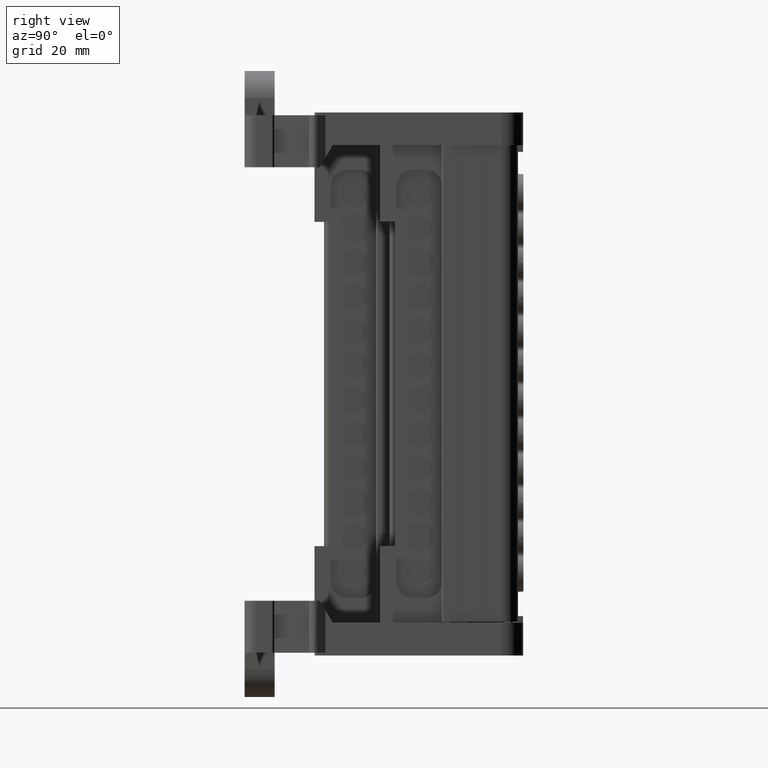
[diagram: clean part render]
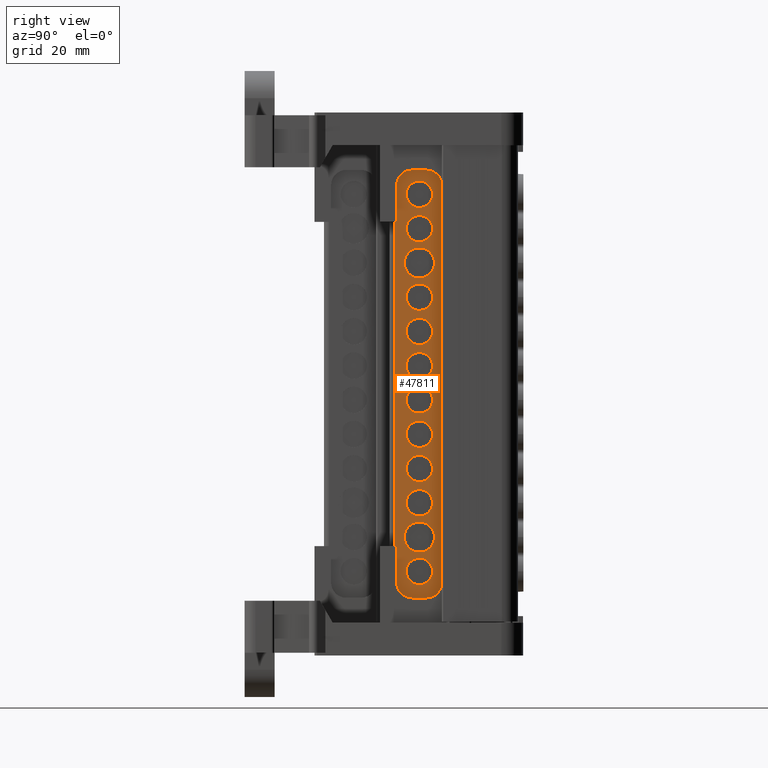
[diagram: same view with one face highlighted and labeled with its STEP entity id]
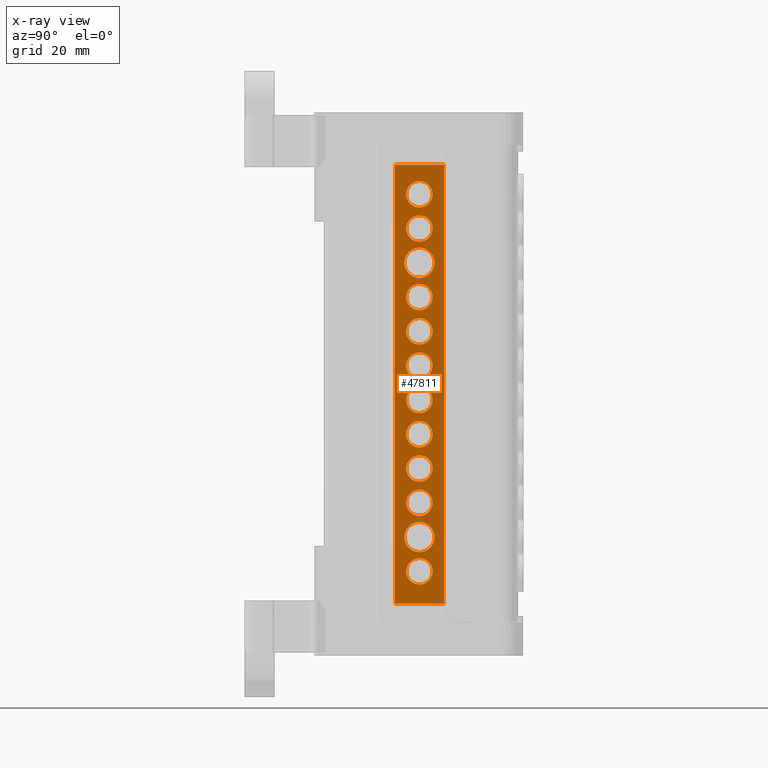
[diagram: x-ray of the same camera — body ghosted, the highlighted face saturated]
A machine part, right view. The second image highlights one B-rep face of the part: STEP entity #47811.
The next image is the same camera in x-ray: the body ghosted, the highlighted face saturated — about 0% of this face is hidden behind the body in this view.
In plain terms, the highlighted planar face has unit normal (1, -0, -0).
Its self-contained STEP definition (entity closure, byte-faithful):
#2196 = CARTESIAN_POINT ( 'NONE',  ( -31.31639942213237800, 28.14872864396558300, 35.76981950541748000 ) ) ;
#2210 = CARTESIAN_POINT ( 'NONE',  ( -31.31639942213237400, 28.14872864396528800, -1.730180494582551200 ) ) ;
#2214 = CARTESIAN_POINT ( 'NONE',  ( -31.31639942213237800, 28.14872864396523500, -7.980180494582527700 ) ) ;
#2215 = CARTESIAN_POINT ( 'NONE',  ( -31.31639942213158900, 32.94872864396528900, -1.730180494582572300 ) ) ;
#2217 = CARTESIAN_POINT ( 'NONE',  ( -31.31639942213158900, 32.94872864396538100, 10.76981950541741600 ) ) ;
#2219 = CARTESIAN_POINT ( 'NONE',  ( -31.31639942213159600, 32.94872864396540300, -14.23018049458254100 ) ) ;
#2226 = CARTESIAN_POINT ( 'NONE',  ( -31.31639942213158900, 32.94872864396543800, 17.01981950541742300 ) ) ;
#2233 = CARTESIAN_POINT ( 'NONE',  ( -31.31639942213237800, 28.14872864396533800, 4.519819505417433300 ) ) ;
#2236 = CARTESIAN_POINT ( 'NONE',  ( -31.31639942213153900, 33.29872864396534700, -20.48018049458254100 ) ) ;
#2241 = CARTESIAN_POINT ( 'NONE',  ( -31.31639942213158900, 32.94872864396523900, -7.980180494582551600 ) ) ;
#2243 = CARTESIAN_POINT ( 'NONE',  ( -31.31639942213237800, 28.14872864396507900, -26.73018049458251600 ) ) ;
#2245 = CARTESIAN_POINT ( 'NONE',  ( -31.31639942213244200, 27.79872864396534400, -20.48018049458254100 ) ) ;
#2247 = CARTESIAN_POINT ( 'NONE',  ( -31.31639942213237800, 28.14872864396538400, 10.76981950541744100 ) ) ;
#2248 = CARTESIAN_POINT ( 'NONE',  ( -31.31639942213238500, 28.14872864396540600, -14.23018049458254100 ) ) ;
#2257 = CARTESIAN_POINT ( 'NONE',  ( -31.31639942213158900, 32.94872864396507600, -26.73018049458254100 ) ) ;
#2276 = CARTESIAN_POINT ( 'NONE',  ( -31.31639942213158900, 32.94872864396533900, 4.519819505417411100 ) ) ;
#2289 = CARTESIAN_POINT ( 'NONE',  ( -31.31639942213158900, 32.94872864396564400, 42.01981950541741600 ) ) ;
#2308 = CARTESIAN_POINT ( 'NONE',  ( -31.31639942213237800, 28.14872864396549400, 23.26981950541745500 ) ) ;
#2324 = CARTESIAN_POINT ( 'NONE',  ( -31.31639942213158900, 32.94872864396548800, 23.26981950541742700 ) ) ;
#2327 = CARTESIAN_POINT ( 'NONE',  ( -31.31639942213158900, 32.94872864396557300, 35.76981950541748000 ) ) ;
#2333 = CARTESIAN_POINT ( 'NONE',  ( -31.31639942213237800, 28.14872864396544100, 17.01981950541744100 ) ) ;
#2353 = CARTESIAN_POINT ( 'NONE',  ( -31.31639942213236700, 28.14872864396563700, 42.01981950541744500 ) ) ;
#2366 = CARTESIAN_POINT ( 'NONE',  ( -31.31639942213243400, 27.79872864396553900, 29.51981950541742700 ) ) ;
#2379 = CARTESIAN_POINT ( 'NONE',  ( -31.31639942213153200, 33.29872864396553900, 29.51981950541742700 ) ) ;
#3229 = CARTESIAN_POINT ( 'NONE',  ( -31.31639942213183800, 31.50859989449469000, -28.92998913095131300 ) ) ;
#3672 = CARTESIAN_POINT ( 'NONE',  ( -31.31639942213183000, 31.47059762070207600, -28.94615754568068800 ) ) ;
#3712 = CARTESIAN_POINT ( 'NONE',  ( -31.31639942213183800, 31.44984691222700600, -28.95465940452384900 ) ) ;
#3992 = CARTESIAN_POINT ( 'NONE',  ( -31.31639942213167800, 32.47949910977980200, -28.19332252716890300 ) ) ;
#3993 = CARTESIAN_POINT ( 'NONE',  ( -31.31639942213173500, 32.12892782332912800, -28.54419389056106100 ) ) ;
#3998 = CARTESIAN_POINT ( 'NONE',  ( -31.31639942213160300, 32.86605903246867700, -27.36319263865615500 ) ) ;
#3999 = CARTESIAN_POINT ( 'NONE',  ( -31.31639942213176300, 31.93958138022902900, -28.69871618737183600 ) ) ;
#4000 = CARTESIAN_POINT ( 'NONE',  ( -31.31639942213161700, 32.79401196603733800, -27.57813633414855700 ) ) ;
#4014 = CARTESIAN_POINT ( 'NONE',  ( -31.31639942213160300, 32.92743731395749100, -27.10794338790226700 ) ) ;
#4015 = CARTESIAN_POINT ( 'NONE',  ( -31.31639942213161700, 32.78782150774382100, -27.59438635575431000 ) ) ;
#4019 = CARTESIAN_POINT ( 'NONE',  ( -31.31639942213158900, 32.94872864396507600, -26.73018049458254100 ) ) ;
#4020 = CARTESIAN_POINT ( 'NONE',  ( -31.31639942213162400, 32.80714818204734900, -27.54253538616209700 ) ) ;
#4051 = CARTESIAN_POINT ( 'NONE',  ( -31.31639942213159600, 32.94859846092146000, -26.88294305484034300 ) ) ;
#4052 = CARTESIAN_POINT ( 'NONE',  ( -31.31639942213161700, 32.82619732254991600, -27.48900447957850800 ) ) ;
#4053 = CARTESIAN_POINT ( 'NONE',  ( -31.31639942213164200, 32.65860550685166400, -27.92115086596007600 ) ) ;
#4364 = CARTESIAN_POINT ( 'NONE',  ( -31.31639942213180200, 31.69407079683148600, -28.84239377676853900 ) ) ;
#4494 = CARTESIAN_POINT ( 'NONE',  ( -31.31639942213181600, 31.56516390518750000, -28.90508296557958800 ) ) ;
#6429 = CIRCLE ( 'NONE', #6434, 2.399999999999999500 ) ;
#6434 = AXIS2_PLACEMENT_3D ( 'NONE', #27662, #27724, #27639 ) ;
#6439 = CIRCLE ( 'NONE', #6451, 2.750000000000002700 ) ;
#6451 = AXIS2_PLACEMENT_3D ( 'NONE', #21635, #21525, #21626 ) ;
#6478 = AXIS2_PLACEMENT_3D ( 'NONE', #27935, #27850, #27943 ) ;
#6522 = AXIS2_PLACEMENT_3D ( 'NONE', #27775, #27769, #27791 ) ;
#6530 = CIRCLE ( 'NONE', #6478, 2.399999999999992400 ) ;
#6536 = CIRCLE ( 'NONE', #6522, 2.750000000000002700 ) ;
#6596 = VECTOR ( 'NONE', #33499, 1000.000000000000000 ) ;
#8695 = CARTESIAN_POINT ( 'NONE',  ( -31.31639942213206900, 30.17182937614460400, -29.10923067991484800 ) ) ;
#8707 = CARTESIAN_POINT ( 'NONE',  ( -31.31639942213194800, 30.85326676390978300, -29.13005055742415200 ) ) ;
#8709 = CARTESIAN_POINT ( 'NONE',  ( -31.31639942213237400, 28.20515881928823300, -27.33088116005317000 ) ) ;
#8712 = CARTESIAN_POINT ( 'NONE',  ( -31.31639942213234600, 28.34892002657073500, -27.69005176407197100 ) ) ;
#8718 = CARTESIAN_POINT ( 'NONE',  ( -31.31639942213210000, 29.79028249512501600, -29.00779858612854800 ) ) ;
#8726 = CARTESIAN_POINT ( 'NONE',  ( -31.31639942213201200, 30.39645958399248800, -29.13024546316173200 ) ) ;
#8728 = CARTESIAN_POINT ( 'NONE',  ( -31.31639942213236000, 28.37382620448486000, -27.74661578729749300 ) ) ;
#8730 = CARTESIAN_POINT ( 'NONE',  ( -31.31639942213209300, 29.91636421901590400, -29.04776701959104600 ) ) ;
#8733 = CARTESIAN_POINT ( 'NONE',  ( -31.31639942213237800, 28.14872864396507900, -26.73018049458251600 ) ) ;
#8738 = CARTESIAN_POINT ( 'NONE',  ( -31.31639942213230300, 28.73471528915141700, -28.31037971507958400 ) ) ;
#8741 = CARTESIAN_POINT ( 'NONE',  ( -31.31639942213222800, 29.08558652904904600, -28.66095087813123900 ) ) ;
#8757 = CARTESIAN_POINT ( 'NONE',  ( -31.31639942213237800, 28.14898946013818200, -27.03640539240369700 ) ) ;
#8759 = CARTESIAN_POINT ( 'NONE',  ( -31.31639942213213600, 29.70089232399935900, -28.97551107993841100 ) ) ;
#8784 = CARTESIAN_POINT ( 'NONE',  ( -31.31639942213236700, 28.33275160283653800, -27.65204948128153700 ) ) ;
#8803 = CARTESIAN_POINT ( 'NONE',  ( -31.31639942213219300, 29.35775826721445400, -28.84005735209385100 ) ) ;
#8810 = CARTESIAN_POINT ( 'NONE',  ( -31.31639942213212200, 29.68452278312906100, -28.96927335869719800 ) ) ;
#8820 = CARTESIAN_POINT ( 'NONE',  ( -31.31639942213232400, 28.58019302321424600, -28.12103330282927200 ) ) ;
#8825 = CARTESIAN_POINT ( 'NONE',  ( -31.31639942213212900, 29.73660122517323500, -28.98868998536591200 ) ) ;
#8834 = CARTESIAN_POINT ( 'NONE',  ( -31.31639942213190900, 31.14910050189574200, -29.07388061886945300 ) ) ;
#8842 = CARTESIAN_POINT ( 'NONE',  ( -31.31639942213232400, 28.43651541580792100, -27.87552270143605400 ) ) ;
#8845 = CARTESIAN_POINT ( 'NONE',  ( -31.31639942213236700, 28.32424159029815400, -27.63127821237330700 ) ) ;
#9026 = CARTESIAN_POINT ( 'NONE',  ( -31.31639942213158900, 32.94872864396564400, 42.01981950541741600 ) ) ;
#9031 = CARTESIAN_POINT ( 'NONE',  ( -31.31639942213158900, 32.94872864396523900, -7.980180494582551600 ) ) ;
#9033 = CARTESIAN_POINT ( 'NONE',  ( -31.31639942213158900, 32.94859846092202800, 41.86705694515590200 ) ) ;
#9035 = CARTESIAN_POINT ( 'NONE',  ( -31.31639942213159600, 32.94859846092164400, -8.132943054845522800 ) ) ;
#9038 = CARTESIAN_POINT ( 'NONE',  ( -31.31639942213158200, 32.92743731395802300, 41.64205661209118100 ) ) ;
#9046 = CARTESIAN_POINT ( 'NONE',  ( -31.31639942213160300, 32.86605903246921700, 41.38680736133890300 ) ) ;
#9064 = CARTESIAN_POINT ( 'NONE',  ( -31.31639942213162400, 32.80714818204786800, 41.20746461383608800 ) ) ;
#9073 = CARTESIAN_POINT ( 'NONE',  ( -31.31639942213161000, 32.82619732255043500, 41.26099552041854700 ) ) ;
#9172 = CARTESIAN_POINT ( 'NONE',  ( -31.31639942213180200, 31.69407079683933400, -10.09239377676697900 ) ) ;
#9175 = CARTESIAN_POINT ( 'NONE',  ( -31.31639942213212200, 29.70089232400046700, -10.22551107993843900 ) ) ;
#9177 = CARTESIAN_POINT ( 'NONE',  ( -31.31639942213183000, 31.50859989449942900, 39.82001086905160700 ) ) ;
#9180 = CARTESIAN_POINT ( 'NONE',  ( -31.31639942213184500, 31.44984691222666500, 39.79534059547607000 ) ) ;
#9183 = CARTESIAN_POINT ( 'NONE',  ( -31.31639942213212900, 29.68452278312907200, -10.21927335869695800 ) ) ;
#9186 = CARTESIAN_POINT ( 'NONE',  ( -31.31639942213172700, 32.12892782333514700, -9.794193890559723700 ) ) ;
#9188 = CARTESIAN_POINT ( 'NONE',  ( -31.31639942213217900, 29.35775826722381200, -10.09005735210070400 ) ) ;
#9191 = CARTESIAN_POINT ( 'NONE',  ( -31.31639942213232400, 28.58019302321574200, -9.371033302832634200 ) ) ;
#9193 = CARTESIAN_POINT ( 'NONE',  ( -31.31639942213208600, 29.79028249511793200, 39.74220141387189600 ) ) ;
#9196 = CARTESIAN_POINT ( 'NONE',  ( -31.31639942213161000, 32.80714818204760500, -8.792535386164248100 ) ) ;
#9197 = CARTESIAN_POINT ( 'NONE',  ( -31.31639942213205400, 30.17182937614921200, -10.35923067991396200 ) ) ;
#9202 = CARTESIAN_POINT ( 'NONE',  ( -31.31639942213231700, 28.43651541580909000, -9.125522701438605100 ) ) ;
#9204 = CARTESIAN_POINT ( 'NONE',  ( -31.31639942213217900, 29.35775826721424400, 39.90994264791360300 ) ) ;
#9206 = CARTESIAN_POINT ( 'NONE',  ( -31.31639942213236700, 28.20515881928878000, 41.41911883995712900 ) ) ;
#9209 = CARTESIAN_POINT ( 'NONE',  ( -31.31639942213177700, 31.93958138023920400, -9.948716187369800700 ) ) ;
#9212 = CARTESIAN_POINT ( 'NONE',  ( -31.31639942213210800, 29.79028249512735000, -10.25779858612826900 ) ) ;
#9215 = CARTESIAN_POINT ( 'NONE',  ( -31.31639942213190200, 31.14910050188832700, -10.32388061887040100 ) ) ;
#9217 = CARTESIAN_POINT ( 'NONE',  ( -31.31639942213223200, 29.08558652904811800, -9.910950878127918500 ) ) ;
#9220 = CARTESIAN_POINT ( 'NONE',  ( -31.31639942213178800, 31.69407079684434700, 39.90760622324008700 ) ) ;
#9223 = CARTESIAN_POINT ( 'NONE',  ( -31.31639942213212900, 29.70089232399730900, 39.77448892006177800 ) ) ;
#9226 = CARTESIAN_POINT ( 'NONE',  ( -31.31639942213235300, 28.32424159029866600, 41.11872178762610700 ) ) ;
#9228 = CARTESIAN_POINT ( 'NONE',  ( -31.31639942213199700, 30.39645958398316600, 39.61975453683876200 ) ) ;
#9231 = CARTESIAN_POINT ( 'NONE',  ( -31.31639942213188700, 31.14910050190713200, 39.67611938112946700 ) ) ;
#9233 = CARTESIAN_POINT ( 'NONE',  ( -31.31639942213206100, 30.17182937612806300, 39.64076932008605800 ) ) ;
#9236 = CARTESIAN_POINT ( 'NONE',  ( -31.31639942213234600, 28.33275160283670900, 41.09795051871808600 ) ) ;
#9238 = CARTESIAN_POINT ( 'NONE',  ( -31.31639942213194100, 30.85326676390595700, -10.38005055742517300 ) ) ;
#9241 = CARTESIAN_POINT ( 'NONE',  ( -31.31639942213179500, 31.56516390519515600, 39.84491703442539300 ) ) ;
#9244 = CARTESIAN_POINT ( 'NONE',  ( -31.31639942213229600, 28.73471528915245100, -9.560379715081619900 ) ) ;
#9246 = CARTESIAN_POINT ( 'NONE',  ( -31.31639942213167800, 32.47949910976125000, 40.55667747281756200 ) ) ;
#9247 = CARTESIAN_POINT ( 'NONE',  ( -31.31639942213161700, 32.78782150774419800, -8.844386355754496200 ) ) ;
#9249 = CARTESIAN_POINT ( 'NONE',  ( -31.31639942213172700, 32.12892782333905500, 40.20580610944547600 ) ) ;
#9252 = CARTESIAN_POINT ( 'NONE',  ( -31.31639942213232400, 28.43651541580653900, 40.87447729856142300 ) ) ;
#9255 = CARTESIAN_POINT ( 'NONE',  ( -31.31639942213161700, 32.78782150774444700, 41.15561364424529200 ) ) ;
#9257 = CARTESIAN_POINT ( 'NONE',  ( -31.31639942213234600, 28.34892002657057800, 41.05994823592718700 ) ) ;
#9260 = CARTESIAN_POINT ( 'NONE',  ( -31.31639942213177000, 31.93958138024609300, 40.05128381263971000 ) ) ;
#9263 = CARTESIAN_POINT ( 'NONE',  ( -31.31639942213211500, 29.73660122516907800, 39.76131001463439000 ) ) ;
#9266 = CARTESIAN_POINT ( 'NONE',  ( -31.31639942213235300, 28.37382620448427400, 41.00338421270106400 ) ) ;
#9268 = CARTESIAN_POINT ( 'NONE',  ( -31.31639942213231000, 28.58019302321218500, 40.62896669716734300 ) ) ;
#9270 = CARTESIAN_POINT ( 'NONE',  ( -31.31639942213165600, 32.65860550685066200, 40.82884913404397800 ) ) ;
#9273 = CARTESIAN_POINT ( 'NONE',  ( -31.31639942213212900, 29.68452278312937100, 39.78072664130240100 ) ) ;
#9276 = CARTESIAN_POINT ( 'NONE',  ( -31.31639942213160300, 32.79401196603787100, 41.17186366585041700 ) ) ;
#9280 = CARTESIAN_POINT ( 'NONE',  ( -31.31639942213208600, 29.91636421900356500, 39.70223298040964700 ) ) ;
#9283 = CARTESIAN_POINT ( 'NONE',  ( -31.31639942213159600, 32.92743731395767500, -8.357943387911287700 ) ) ;
#9286 = CARTESIAN_POINT ( 'NONE',  ( -31.31639942213159600, 32.86605903246890400, -8.613192638662804200 ) ) ;
#9287 = CARTESIAN_POINT ( 'NONE',  ( -31.31639942213222100, 29.08558652905228600, 40.08904912187275500 ) ) ;
#9290 = CARTESIAN_POINT ( 'NONE',  ( -31.31639942213237800, 28.14898946013874700, 41.71359460760657400 ) ) ;
#9293 = CARTESIAN_POINT ( 'NONE',  ( -31.31639942213162400, 32.82619732255015100, -8.739004479582254300 ) ) ;
#9296 = CARTESIAN_POINT ( 'NONE',  ( -31.31639942213183800, 31.47059762070475500, 39.80384245432078700 ) ) ;
#9301 = CARTESIAN_POINT ( 'NONE',  ( -31.31639942213162400, 32.79401196603760800, -8.828136334149554900 ) ) ;
#9304 = CARTESIAN_POINT ( 'NONE',  ( -31.31639942213193700, 30.85326676392931600, 39.61994944257480700 ) ) ;
#9307 = CARTESIAN_POINT ( 'NONE',  ( -31.31639942213163900, 32.65860550685037800, -9.171150865952411000 ) ) ;
#9309 = CARTESIAN_POINT ( 'NONE',  ( -31.31639942213228900, 28.73471528915041500, 40.43962028491851900 ) ) ;
#9312 = CARTESIAN_POINT ( 'NONE',  ( -31.31639942213184500, 31.50859989449795900, -10.17998913095062000 ) ) ;
#9315 = CARTESIAN_POINT ( 'NONE',  ( -31.31639942213167800, 32.47949910976935700, -9.443322527170513700 ) ) ;
#9318 = CARTESIAN_POINT ( 'NONE',  ( -31.31639942213183800, 31.44984691222828800, -10.20465940452355000 ) ) ;
#9320 = CARTESIAN_POINT ( 'NONE',  ( -31.31639942213236700, 28.14872864396563700, 42.01981950541744500 ) ) ;
#9323 = CARTESIAN_POINT ( 'NONE',  ( -31.31639942213201900, 30.39645958399542300, -10.38024546316121100 ) ) ;
#9326 = CARTESIAN_POINT ( 'NONE',  ( -31.31639942213183800, 31.47059762070417200, -10.19615754568022600 ) ) ;
#9329 = CARTESIAN_POINT ( 'NONE',  ( -31.31639942213208600, 29.91636421901948900, -10.29776701959045400 ) ) ;
#9331 = CARTESIAN_POINT ( 'NONE',  ( -31.31639942213182300, 31.56516390519242800, -10.15508296557856800 ) ) ;
#9334 = CARTESIAN_POINT ( 'NONE',  ( -31.31639942213212900, 29.73660122517486600, -10.23868998536581500 ) ) ;
#9352 = CARTESIAN_POINT ( 'NONE',  ( -31.31639942213237800, 28.14872864396523500, -7.980180494582527700 ) ) ;
#9369 = CARTESIAN_POINT ( 'NONE',  ( -31.31639942213238500, 28.14898946013834900, -8.286405392403651100 ) ) ;
#9379 = CARTESIAN_POINT ( 'NONE',  ( -31.31639942213236000, 28.33275160283693900, -8.902049481282139400 ) ) ;
#9382 = CARTESIAN_POINT ( 'NONE',  ( -31.31639942213235300, 28.34892002657127800, -8.940051764072974200 ) ) ;
#9440 = CARTESIAN_POINT ( 'NONE',  ( -31.31639942213236700, 28.37382620448564900, -8.996615787299052900 ) ) ;
#9456 = CARTESIAN_POINT ( 'NONE',  ( -31.31639942213236000, 28.32424159029838200, -8.881278212373489500 ) ) ;
#9479 = CARTESIAN_POINT ( 'NONE',  ( -31.31639942213237400, 28.20515881928841800, -8.580881160053182900 ) ) ;
#9531 = DIRECTION ( 'NONE',  ( 1.640102195468979700E-013, 1.000000000000000000, 0.0000000000000000000 ) ) ;
#9650 = CARTESIAN_POINT ( 'NONE',  ( -31.31639942213198300, 30.54872864396553900, 29.51981950541742700 ) ) ;
#9652 = DIRECTION ( 'NONE',  ( -1.000000000000000000, 1.648274865130208900E-013, 1.189952329614814900E-016 ) ) ;
#9665 = CARTESIAN_POINT ( 'NONE',  ( -31.31639942213158900, 32.94872864396528900, -1.730180494582572300 ) ) ;
#9670 = CARTESIAN_POINT ( 'NONE',  ( -31.31639942213180900, 31.56516390519367100, -3.905082965578103000 ) ) ;
#9672 = CARTESIAN_POINT ( 'NONE',  ( -31.31639942213185900, 31.50859989449859800, -3.929989130950398900 ) ) ;
#9691 = CARTESIAN_POINT ( 'NONE',  ( -31.31639942213158900, 32.94872864396548800, 23.26981950541742700 ) ) ;
#9707 = CARTESIAN_POINT ( 'NONE',  ( -31.31639942213159600, 32.94859846092187900, 23.11705694515592700 ) ) ;
#9709 = CARTESIAN_POINT ( 'NONE',  ( -31.31639942213160300, 32.82619732255011500, -2.489004479586584700 ) ) ;
#9714 = CARTESIAN_POINT ( 'NONE',  ( -31.31639942213161700, 32.80714818204757000, -2.542535386166934400 ) ) ;
#9726 = CARTESIAN_POINT ( 'NONE',  ( -31.31639942213159600, 32.79401196603757300, -2.578136334151072800 ) ) ;
#9729 = CARTESIAN_POINT ( 'NONE',  ( -31.31639942213161000, 32.78782150774454600, -2.594386355754478800 ) ) ;
#9743 = CARTESIAN_POINT ( 'NONE',  ( -31.31639942213168500, 32.47949910976526400, -3.193322527172454400 ) ) ;
#9748 = CARTESIAN_POINT ( 'NONE',  ( -31.31639942213172700, 32.12892782333692300, -3.544193890559125900 ) ) ;
#9759 = CARTESIAN_POINT ( 'NONE',  ( -31.31639942213177700, 31.93958138024245100, -3.698716187368557700 ) ) ;
#9761 = CARTESIAN_POINT ( 'NONE',  ( -31.31639942213180200, 31.69407079684168200, -3.842393776766058100 ) ) ;
#9774 = CARTESIAN_POINT ( 'NONE',  ( -31.31639942213159600, 32.94859846092163700, -1.882943054850978500 ) ) ;
#9775 = CARTESIAN_POINT ( 'NONE',  ( -31.31639942213158900, 32.92743731395764700, -2.107943387920840000 ) ) ;
#9805 = CARTESIAN_POINT ( 'NONE',  ( -31.31639942213159600, 32.86605903246884700, -2.363192638670051700 ) ) ;
#9818 = CARTESIAN_POINT ( 'NONE',  ( -31.31639942213164900, 32.65860550684431000, -2.921150865956339000 ) ) ;
#9821 = CARTESIAN_POINT ( 'NONE',  ( -31.31639942213237800, 28.14898946013840200, -2.036405392402717700 ) ) ;
#9824 = CARTESIAN_POINT ( 'NONE',  ( -31.31639942213213600, 29.70089232399938300, -3.975511079938416300 ) ) ;
#9825 = CARTESIAN_POINT ( 'NONE',  ( -31.31639942213183000, 31.50859989449597600, 21.07001086904881900 ) ) ;
#9828 = CARTESIAN_POINT ( 'NONE',  ( -31.31639942213158900, 32.86605903246908900, 22.63680736133896000 ) ) ;
#9830 = CARTESIAN_POINT ( 'NONE',  ( -31.31639942213184500, 31.44984691222726900, 21.04534059547603100 ) ) ;
#9833 = CARTESIAN_POINT ( 'NONE',  ( -31.31639942213234600, 28.37382620448515900, -2.746615787298075000 ) ) ;
#9834 = CARTESIAN_POINT ( 'NONE',  ( -31.31639942213237800, 28.14872864396549400, 23.26981950541745500 ) ) ;
#9837 = CARTESIAN_POINT ( 'NONE',  ( -31.31639942213232400, 28.43651541580822300, -2.875522701436948700 ) ) ;
#9840 = CARTESIAN_POINT ( 'NONE',  ( -31.31639942213208600, 29.91636421901102200, 20.95223298040827200 ) ) ;
#9843 = CARTESIAN_POINT ( 'NONE',  ( -31.31639942213162400, 32.80714818204776200, 22.45746461383619400 ) ) ;
#9845 = CARTESIAN_POINT ( 'NONE',  ( -31.31639942213201900, 30.39645958399103500, -4.130245463161231500 ) ) ;
#9848 = CARTESIAN_POINT ( 'NONE',  ( -31.31639942213212200, 29.68452278312949500, -3.969273358697349400 ) ) ;
#9851 = CARTESIAN_POINT ( 'NONE',  ( -31.31639942213229600, 28.73471528915175100, -3.310379715080329400 ) ) ;
#9854 = CARTESIAN_POINT ( 'NONE',  ( -31.31639942213213600, 29.68452278312945200, 21.03072664130252200 ) ) ;
#9856 = CARTESIAN_POINT ( 'NONE',  ( -31.31639942213185200, 31.44984691222799000, -3.954659404523711300 ) ) ;
#9861 = CARTESIAN_POINT ( 'NONE',  ( -31.31639942213235300, 28.32424159029857700, 22.36872178762635600 ) ) ;
#9864 = CARTESIAN_POINT ( 'NONE',  ( -31.31639942213236700, 28.20515881928846700, -2.330881160052236600 ) ) ;
#9868 = CARTESIAN_POINT ( 'NONE',  ( -31.31639942213180200, 31.69407079683457700, 21.15760622323194800 ) ) ;
#9871 = CARTESIAN_POINT ( 'NONE',  ( -31.31639942213205400, 30.17182937614169800, -4.109230679913975900 ) ) ;
#9874 = CARTESIAN_POINT ( 'NONE',  ( -31.31639942213211500, 29.79028249512402800, -4.007798586128257200 ) ) ;
#9875 = CARTESIAN_POINT ( 'NONE',  ( -31.31639942213234600, 28.34892002657100800, -2.690051764072383600 ) ) ;
#9878 = CARTESIAN_POINT ( 'NONE',  ( -31.31639942213161000, 32.82619732255030700, 22.51099552041865300 ) ) ;
#9881 = CARTESIAN_POINT ( 'NONE',  ( -31.31639942213189400, 31.14910050189678600, 20.92611938113158100 ) ) ;
#9884 = CARTESIAN_POINT ( 'NONE',  ( -31.31639942213200500, 30.39645958398881800, 20.86975453683775300 ) ) ;
#9886 = CARTESIAN_POINT ( 'NONE',  ( -31.31639942213206900, 30.17182937613796100, 20.89076932008426000 ) ) ;
#9889 = CARTESIAN_POINT ( 'NONE',  ( -31.31639942213185200, 31.47059762070437800, -3.946157545680180500 ) ) ;
#9892 = CARTESIAN_POINT ( 'NONE',  ( -31.31639942213180200, 31.56516390518942900, 21.09491703442068200 ) ) ;
#9895 = CARTESIAN_POINT ( 'NONE',  ( -31.31639942213231700, 28.58019302321455500, -3.121033302830410700 ) ) ;
#9897 = CARTESIAN_POINT ( 'NONE',  ( -31.31639942213237400, 28.14872864396528800, -1.730180494582551200 ) ) ;
#9900 = CARTESIAN_POINT ( 'NONE',  ( -31.31639942213167100, 32.47949910977595800, 21.80667747283020200 ) ) ;
#9903 = CARTESIAN_POINT ( 'NONE',  ( -31.31639942213172700, 32.12892782333158700, 21.45580610943930800 ) ) ;
#9906 = CARTESIAN_POINT ( 'NONE',  ( -31.31639942213161700, 32.78782150774442500, 22.40561364424565500 ) ) ;
#9908 = CARTESIAN_POINT ( 'NONE',  ( -31.31639942213212200, 29.73660122517176400, 21.01131001463385700 ) ) ;
#9911 = CARTESIAN_POINT ( 'NONE',  ( -31.31639942213175600, 31.93958138023307600, 21.30128381262883500 ) ) ;
#9914 = CARTESIAN_POINT ( 'NONE',  ( -31.31639942213194100, 30.85326676391412400, -4.130050557425196400 ) ) ;
#9917 = CARTESIAN_POINT ( 'NONE',  ( -31.31639942213210000, 29.79028249512233000, 20.99220141387107600 ) ) ;
#9918 = CARTESIAN_POINT ( 'NONE',  ( -31.31639942213228200, 28.73471528915166900, 21.68962028491828100 ) ) ;
#9921 = CARTESIAN_POINT ( 'NONE',  ( -31.31639942213163200, 32.65860550684901400, 22.07884913404025800 ) ) ;
#9924 = CARTESIAN_POINT ( 'NONE',  ( -31.31639942213217900, 29.35775826721587800, -3.840057352093913900 ) ) ;
#9926 = CARTESIAN_POINT ( 'NONE',  ( -31.31639942213161700, 32.79401196603774300, 22.42186366585054100 ) ) ;
#9928 = CARTESIAN_POINT ( 'NONE',  ( -31.31639942213212200, 29.70089232399876900, 21.02448892006146500 ) ) ;
#9931 = CARTESIAN_POINT ( 'NONE',  ( -31.31639942213231700, 28.58019302321437400, 21.87896669716701200 ) ) ;
#9934 = CARTESIAN_POINT ( 'NONE',  ( -31.31639942213231700, 28.43651541580814200, 22.12447729856115300 ) ) ;
#9937 = CARTESIAN_POINT ( 'NONE',  ( -31.31639942213190200, 31.14910050188832700, -4.073880618870472100 ) ) ;
#9939 = CARTESIAN_POINT ( 'NONE',  ( -31.31639942213212200, 29.73660122517283700, -3.988689985365792400 ) ) ;
#9945 = CARTESIAN_POINT ( 'NONE',  ( -31.31639942213222800, 29.08558652904946500, -3.660950878130379200 ) ) ;
#9947 = CARTESIAN_POINT ( 'NONE',  ( -31.31639942213233900, 28.33275160283681500, -2.652049481281820900 ) ) ;
#9950 = CARTESIAN_POINT ( 'NONE',  ( -31.31639942213210000, 29.91636421901386500, -4.047767019590452300 ) ) ;
#9953 = CARTESIAN_POINT ( 'NONE',  ( -31.31639942213236000, 28.32424159029843800, -2.631278212373533900 ) ) ;
#9956 = CARTESIAN_POINT ( 'NONE',  ( -31.31639942213159600, 32.92743731395788800, 22.89205661209122400 ) ) ;
#9958 = CARTESIAN_POINT ( 'NONE',  ( -31.31639942213183000, 31.47059762070290700, 21.05384245431935100 ) ) ;
#9961 = CARTESIAN_POINT ( 'NONE',  ( -31.31639942213194100, 30.85326676391811800, 20.86994944257689600 ) ) ;
#9963 = CARTESIAN_POINT ( 'NONE',  ( -31.31639942213218600, 29.35775826721478100, 21.15994264791073600 ) ) ;
#9965 = CARTESIAN_POINT ( 'NONE',  ( -31.31639942213222800, 29.08558652904978100, 21.33904912187291800 ) ) ;
#9966 = CARTESIAN_POINT ( 'NONE',  ( -31.31639942213234600, 28.37382620448516900, 22.25338421270084100 ) ) ;
#9969 = CARTESIAN_POINT ( 'NONE',  ( -31.31639942213233900, 28.34892002657106900, 22.30994823592701700 ) ) ;
#9972 = CARTESIAN_POINT ( 'NONE',  ( -31.31639942213233900, 28.33275160283691800, 22.34795051871791200 ) ) ;
#9974 = CARTESIAN_POINT ( 'NONE',  ( -31.31639942213236000, 28.20515881928863400, 22.66911883995136300 ) ) ;
#9976 = CARTESIAN_POINT ( 'NONE',  ( -31.31639942213237800, 28.14898946013860800, 22.96359460760085400 ) ) ;
#9998 = CARTESIAN_POINT ( 'NONE',  ( -31.31639942213159600, 32.94859846092175100, 4.367056945158082300 ) ) ;
#10066 = CARTESIAN_POINT ( 'NONE',  ( -31.31639942213158900, 32.94872864396533900, 4.519819505417411100 ) ) ;
#10137 = CARTESIAN_POINT ( 'NONE',  ( -31.31639942213167100, 32.47949910977327900, 3.056677472827653600 ) ) ;
#10138 = CARTESIAN_POINT ( 'NONE',  ( -31.31639942213223200, 29.08558652904698500, 2.589049121874416000 ) ) ;
#10140 = CARTESIAN_POINT ( 'NONE',  ( -31.31639942213231700, 28.58019302321684300, 3.128966697165370500 ) ) ;
#10142 = CARTESIAN_POINT ( 'NONE',  ( -31.31639942213180200, 31.56516390519078300, 2.344917034421944500 ) ) ;
#10144 = CARTESIAN_POINT ( 'NONE',  ( -31.31639942213178800, 31.69407079683663000, 2.407606223233979700 ) ) ;
#10145 = CARTESIAN_POINT ( 'NONE',  ( -31.31639942213183000, 31.44984691222770600, 2.295340595476347300 ) ) ;
#10149 = CARTESIAN_POINT ( 'NONE',  ( -31.31639942213210800, 29.70089232400008700, 2.274488920061581000 ) ) ;
#10151 = CARTESIAN_POINT ( 'NONE',  ( -31.31639942213234600, 28.34892002657164400, 3.559948235926496000 ) ) ;
#10152 = CARTESIAN_POINT ( 'NONE',  ( -31.31639942213210000, 29.79028249512614600, 2.242201413871740100 ) ) ;
#10154 = CARTESIAN_POINT ( 'NONE',  ( -31.31639942213160300, 32.82619732255017900, 3.760995520420370700 ) ) ;
#10158 = CARTESIAN_POINT ( 'NONE',  ( -31.31639942213204700, 30.17182937614644100, 2.140769320086034700 ) ) ;
#10159 = CARTESIAN_POINT ( 'NONE',  ( -31.31639942213208600, 29.91636421901743500, 2.202232980409554800 ) ) ;
#10161 = CARTESIAN_POINT ( 'NONE',  ( -31.31639942213176300, 31.93958138023565900, 2.551283812631486700 ) ) ;
#10163 = CARTESIAN_POINT ( 'NONE',  ( -31.31639942213161000, 32.80714818204764100, 3.707464613837246700 ) ) ;
#10165 = CARTESIAN_POINT ( 'NONE',  ( -31.31639942213183000, 31.47059762070359000, 2.303842454319871900 ) ) ;
#10166 = CARTESIAN_POINT ( 'NONE',  ( -31.31639942213233900, 28.37382620448617500, 3.503384212700074500 ) ) ;
#10179 = CARTESIAN_POINT ( 'NONE',  ( -31.31639942213161700, 32.78782150774412000, 3.655613644245548700 ) ) ;
#10180 = CARTESIAN_POINT ( 'NONE',  ( -31.31639942213159600, 32.92743731395778200, 4.142056612095025500 ) ) ;
#10184 = CARTESIAN_POINT ( 'NONE',  ( -31.31639942213194100, 30.85326676390899800, 2.119949442574806700 ) ) ;
#10186 = CARTESIAN_POINT ( 'NONE',  ( -31.31639942213161700, 32.79401196603763000, 3.671863665851126800 ) ) ;
#10188 = CARTESIAN_POINT ( 'NONE',  ( -31.31639942213190900, 31.14910050189571300, 2.176119381129551800 ) ) ;
#10190 = CARTESIAN_POINT ( 'NONE',  ( -31.31639942213217900, 29.35775826722347400, 2.409942647900814800 ) ) ;
#10192 = CARTESIAN_POINT ( 'NONE',  ( -31.31639942213201200, 30.39645958399381700, 2.119754536838776900 ) ) ;
#10199 = CARTESIAN_POINT ( 'NONE',  ( -31.31639942213228900, 28.73471528915309700, 2.939620284917260600 ) ) ;
#10200 = CARTESIAN_POINT ( 'NONE',  ( -31.31639942213160300, 32.86605903246897500, 3.886807361341855700 ) ) ;
#10206 = CARTESIAN_POINT ( 'NONE',  ( -31.31639942213172700, 32.12892782333308600, 2.705806109440934000 ) ) ;
#10207 = CARTESIAN_POINT ( 'NONE',  ( -31.31639942213231000, 28.43651541580993600, 3.374477298559886800 ) ) ;
#10209 = CARTESIAN_POINT ( 'NONE',  ( -31.31639942213212200, 29.73660122517413700, 2.261310014634205800 ) ) ;
#10211 = CARTESIAN_POINT ( 'NONE',  ( -31.31639942213236000, 28.32424159029848500, 3.618721787626544300 ) ) ;
#10217 = CARTESIAN_POINT ( 'NONE',  ( -31.31639942213212900, 29.68452278312910100, 2.280726641302973900 ) ) ;
#10220 = CARTESIAN_POINT ( 'NONE',  ( -31.31639942213237800, 28.14872864396533800, 4.519819505417433300 ) ) ;
#10222 = CARTESIAN_POINT ( 'NONE',  ( -31.31639942213237800, 28.20515881928852100, 3.919118839946233100 ) ) ;
#10224 = CARTESIAN_POINT ( 'NONE',  ( -31.31639942213164200, 32.65860550685192000, 3.328849134043307500 ) ) ;
#10226 = CARTESIAN_POINT ( 'NONE',  ( -31.31639942213233900, 28.33275160283717800, 3.597950518717584000 ) ) ;
#10233 = CARTESIAN_POINT ( 'NONE',  ( -31.31639942213182300, 31.50859989449692500, 2.320010869049651300 ) ) ;
#10236 = CARTESIAN_POINT ( 'NONE',  ( -31.31639942213238500, 28.14898946013844500, 4.213594607595752900 ) ) ;
#11490 = EDGE_CURVE ( 'NONE', #76548, #76306, #50922, .T. ) ;
#11503 = EDGE_CURVE ( 'NONE', #76267, #76302, #51353, .T. ) ;
#11515 = EDGE_CURVE ( 'NONE', #76499, #76525, #6439, .T. ) ;
#11519 = EDGE_CURVE ( 'NONE', #76281, #76347, #51588, .T. ) ;
#11523 = EDGE_CURVE ( 'NONE', #76328, #76432, #51537, .T. ) ;
#11557 = EDGE_CURVE ( 'NONE', #76364, #76512, #51729, .T. ) ;
#11567 = EDGE_CURVE ( 'NONE', #76569, #76430, #51740, .T. ) ;
#11584 = EDGE_CURVE ( 'NONE', #76274, #76259, #6429, .T. ) ;
#11591 = EDGE_CURVE ( 'NONE', #76351, #76258, #6536, .T. ) ;
#11594 = EDGE_CURVE ( 'NONE', #76358, #76524, #6530, .T. ) ;
#11595 = EDGE_CURVE ( 'NONE', #76319, #76417, #79946, .T. ) ;
#11599 = EDGE_CURVE ( 'NONE', #76356, #76288, #79948, .T. ) ;
#11735 = EDGE_CURVE ( 'NONE', #44182, #44112, #33530, .T. ) ;
#18186 = CARTESIAN_POINT ( 'NONE',  ( -31.31639942213185200, 31.41293450480087300, -24.49108763046751500 ) ) ;
#18188 = CARTESIAN_POINT ( 'NONE',  ( -31.31639942213163900, 32.72363108344686100, -25.71374520186684300 ) ) ;
#18192 = CARTESIAN_POINT ( 'NONE',  ( -31.31639942213161000, 32.94846782779198000, -26.42395559677268600 ) ) ;
#18197 = CARTESIAN_POINT ( 'NONE',  ( -31.31639942213174900, 32.01187075887630600, -24.79941011103459700 ) ) ;
#18199 = CARTESIAN_POINT ( 'NONE',  ( -31.31639942213165600, 32.51726426471964300, -25.33932768633451400 ) ) ;
#18205 = CARTESIAN_POINT ( 'NONE',  ( -31.31639942213164200, 32.66094187212499400, -25.58483828772797600 ) ) ;
#18208 = CARTESIAN_POINT ( 'NONE',  ( -31.31639942213161000, 32.89229846864189700, -26.12947982912309500 ) ) ;
#18217 = CARTESIAN_POINT ( 'NONE',  ( -31.31639942213162400, 32.74853726136033300, -25.77030922509253200 ) ) ;
#18227 = CARTESIAN_POINT ( 'NONE',  ( -31.31639942213185900, 31.39656496393123000, -24.48484990922636900 ) ) ;
#18229 = CARTESIAN_POINT ( 'NONE',  ( -31.31639942213163200, 32.77321569763185500, -25.82908277679071000 ) ) ;
#18233 = CARTESIAN_POINT ( 'NONE',  ( -31.31639942213179500, 31.73969902071264900, -24.62030363707385700 ) ) ;
#18235 = CARTESIAN_POINT ( 'NONE',  ( -31.31639942213161700, 32.76470568509402900, -25.80831150788307600 ) ) ;
#18248 = CARTESIAN_POINT ( 'NONE',  ( -31.31639942213169200, 32.36274199878077700, -25.14998127408463400 ) ) ;
#18250 = CARTESIAN_POINT ( 'NONE',  ( -31.31639942213185200, 31.36085606275808100, -24.47167100379877500 ) ) ;
#18252 = CARTESIAN_POINT ( 'NONE',  ( -31.31639942213158900, 32.94872864396507600, -26.73018049458254100 ) ) ;
#20664 = CARTESIAN_POINT ( 'NONE',  ( -31.31639942213237800, 28.17001997397302300, 17.39758239874959100 ) ) ;
#20681 = CARTESIAN_POINT ( 'NONE',  ( -31.31639942213237800, 28.23139825546178700, 17.65283164950025000 ) ) ;
#20687 = CARTESIAN_POINT ( 'NONE',  ( -31.31639942213233900, 28.29030910588305400, 17.83217439700002100 ) ) ;
#20693 = CARTESIAN_POINT ( 'NONE',  ( -31.31639942213236700, 28.30963578018649000, 17.88402536658967200 ) ) ;
#20696 = CARTESIAN_POINT ( 'NONE',  ( -31.31639942213230300, 28.61795817817329300, 18.48296153801292300 ) ) ;
#20699 = CARTESIAN_POINT ( 'NONE',  ( -31.31639942213223900, 28.96852946458953700, 18.83383290139089900 ) ) ;
#20702 = CARTESIAN_POINT ( 'NONE',  ( -31.31639942213217900, 29.40338649108347400, 19.13203278759699800 ) ) ;
#20710 = CARTESIAN_POINT ( 'NONE',  ( -31.31639942213216400, 29.53229338273367000, 19.19472197641063000 ) ) ;
#20713 = CARTESIAN_POINT ( 'NONE',  ( -31.31639942213214300, 29.58885739342996900, 19.21962814178383300 ) ) ;
#20716 = CARTESIAN_POINT ( 'NONE',  ( -31.31639942213214300, 29.62685966722505900, 19.23579655651426300 ) ) ;
#20722 = CARTESIAN_POINT ( 'NONE',  ( -31.31639942213233100, 28.43885178108002900, 18.21078987678254900 ) ) ;
#20725 = CARTESIAN_POINT ( 'NONE',  ( -31.31639942213220000, 29.15787590768097100, 18.98835519819816400 ) ) ;
#20727 = CARTESIAN_POINT ( 'NONE',  ( -31.31639942213213600, 29.64761037570277900, 19.24429841535849700 ) ) ;
#20757 = CARTESIAN_POINT ( 'NONE',  ( -31.31639942213237400, 28.14885882700904300, 17.17258206568236600 ) ) ;
#20760 = CARTESIAN_POINT ( 'NONE',  ( -31.31639942213235300, 28.27125996538053300, 17.77864349041863800 ) ) ;
#20775 = CARTESIAN_POINT ( 'NONE',  ( -31.31639942213235300, 28.30344532189306900, 17.86777534498491000 ) ) ;
#20781 = CARTESIAN_POINT ( 'NONE',  ( -31.31639942213208600, 29.94835678603598000, 19.36351962970534000 ) ) ;
#20784 = CARTESIAN_POINT ( 'NONE',  ( -31.31639942213204700, 30.24419052401902500, 19.41968956826011400 ) ) ;
#20787 = CARTESIAN_POINT ( 'NONE',  ( -31.31639942213196200, 30.70099770393784800, 19.41988447399614900 ) ) ;
#20790 = CARTESIAN_POINT ( 'NONE',  ( -31.31639942213191600, 30.92562791178610100, 19.39886969074890300 ) ) ;
#20802 = CARTESIAN_POINT ( 'NONE',  ( -31.31639942213237800, 28.14872864396544100, 17.01981950541744100 ) ) ;
#20812 = CARTESIAN_POINT ( 'NONE',  ( -31.31639942213160300, 32.89229846864226700, 17.62052017089549200 ) ) ;
#20815 = CARTESIAN_POINT ( 'NONE',  ( -31.31639942213189400, 31.18109306891456700, 19.33740603042545600 ) ) ;
#20818 = CARTESIAN_POINT ( 'NONE',  ( -31.31639942213158900, 32.94872864396543800, 17.01981950541742300 ) ) ;
#20821 = CARTESIAN_POINT ( 'NONE',  ( -31.31639942213183000, 31.39656496393053300, 19.26515009077348500 ) ) ;
#20853 = CARTESIAN_POINT ( 'NONE',  ( -31.31639942213179500, 31.73969902070875900, 19.12969636293257700 ) ) ;
#20856 = CARTESIAN_POINT ( 'NONE',  ( -31.31639942213183000, 31.41293450480110700, 19.25891236953221200 ) ) ;
#20859 = CARTESIAN_POINT ( 'NONE',  ( -31.31639942213175600, 32.01187075888835000, 18.95058988895596400 ) ) ;
#20885 = CARTESIAN_POINT ( 'NONE',  ( -31.31639942213162400, 32.76470568509297000, 17.94168849211802600 ) ) ;
#20906 = CARTESIAN_POINT ( 'NONE',  ( -31.31639942213161700, 32.72363108344268300, 18.03625479813681000 ) ) ;
#20909 = CARTESIAN_POINT ( 'NONE',  ( -31.31639942213159600, 32.94846782779234900, 17.32604440324592000 ) ) ;
#20932 = CARTESIAN_POINT ( 'NONE',  ( -31.31639942213162400, 32.66094187211756900, 18.16516171227830500 ) ) ;
#20935 = CARTESIAN_POINT ( 'NONE',  ( -31.31639942213164900, 32.51726426470958100, 18.41067231367389900 ) ) ;
#20938 = CARTESIAN_POINT ( 'NONE',  ( -31.31639942213161700, 32.77321569763225300, 17.92091722320805800 ) ) ;
#20948 = CARTESIAN_POINT ( 'NONE',  ( -31.31639942213185200, 31.30717479280515600, 19.29743759696329900 ) ) ;
#20966 = CARTESIAN_POINT ( 'NONE',  ( -31.31639942213168500, 32.36274199877511400, 18.60001872592024300 ) ) ;
#20982 = CARTESIAN_POINT ( 'NONE',  ( -31.31639942213162400, 32.74853726135797400, 17.97969077490963800 ) ) ;
#20991 = CARTESIAN_POINT ( 'NONE',  ( -31.31639942213183800, 31.36085606275677800, 19.27832899620085200 ) ) ;
#21150 = CARTESIAN_POINT ( 'NONE',  ( -31.31639942213236000, 28.27125996538043400, -0.9713565095810438000 ) ) ;
#21152 = CARTESIAN_POINT ( 'NONE',  ( -31.31639942213185900, 31.39656496393024900, 0.5151500907735873100 ) ) ;
#21156 = CARTESIAN_POINT ( 'NONE',  ( -31.31639942213185200, 31.36085606275599600, 0.5283289962011872300 ) ) ;
#21163 = CARTESIAN_POINT ( 'NONE',  ( -31.31639942213220700, 29.15787590769205900, 0.2383551982034470000 ) ) ;
#21165 = CARTESIAN_POINT ( 'NONE',  ( -31.31639942213212900, 29.64761037570314500, 0.4942984153587179900 ) ) ;
#21166 = CARTESIAN_POINT ( 'NONE',  ( -31.31639942213178800, 31.73969902071315000, 0.3796963629303378200 ) ) ;
#21167 = CARTESIAN_POINT ( 'NONE',  ( -31.31639942213174200, 32.01187075888260800, 0.2005898889637680900 ) ) ;
#21171 = CARTESIAN_POINT ( 'NONE',  ( -31.31639942213213600, 29.58885739343301000, 0.4696281417852820600 ) ) ;
#21173 = CARTESIAN_POINT ( 'NONE',  ( -31.31639942213164200, 32.51726426471473300, -0.3393276863334081000 ) ) ;
#21174 = CARTESIAN_POINT ( 'NONE',  ( -31.31639942213235300, 28.30344532189298700, -0.8822246550148683500 ) ) ;
#21176 = CARTESIAN_POINT ( 'NONE',  ( -31.31639942213161700, 32.72363108344487900, -0.7137452018665181300 ) ) ;
#21178 = CARTESIAN_POINT ( 'NONE',  ( -31.31639942213161700, 32.76470568509362400, -0.8083115078831790700 ) ) ;
#21182 = CARTESIAN_POINT ( 'NONE',  ( -31.31639942213191600, 30.92562791178239600, 0.6488696907506788000 ) ) ;
#21184 = CARTESIAN_POINT ( 'NONE',  ( -31.31639942213237400, 28.14885882700889000, -1.577417934317380200 ) ) ;
#21186 = CARTESIAN_POINT ( 'NONE',  ( -31.31639942213161700, 32.77321569763219600, -0.8290827767917842200 ) ) ;
#21188 = CARTESIAN_POINT ( 'NONE',  ( -31.31639942213213600, 29.62685966722672900, 0.4857965565150623200 ) ) ;
#21190 = CARTESIAN_POINT ( 'NONE',  ( -31.31639942213161000, 32.74853726135926700, -0.7703092250924483700 ) ) ;
#21193 = CARTESIAN_POINT ( 'NONE',  ( -31.31639942213159600, 32.89229846864213200, -1.129479829110853900 ) ) ;
#21205 = CARTESIAN_POINT ( 'NONE',  ( -31.31639942213237400, 28.17001997397287000, -1.352417601249949600 ) ) ;
#21207 = CARTESIAN_POINT ( 'NONE',  ( -31.31639942213216400, 29.53229338273862200, 0.4447219764129806700 ) ) ;
#21213 = CARTESIAN_POINT ( 'NONE',  ( -31.31639942213196200, 30.70099770393580800, 0.6698844739971566700 ) ) ;
#21216 = CARTESIAN_POINT ( 'NONE',  ( -31.31639942213168500, 32.36274199877809800, -0.1499812740840451900 ) ) ;
#21221 = CARTESIAN_POINT ( 'NONE',  ( -31.31639942213163900, 32.66094187212142000, -0.5848382877272227900 ) ) ;
#21224 = CARTESIAN_POINT ( 'NONE',  ( -31.31639942213158900, 32.94846782779220000, -1.423955596760350600 ) ) ;
#21227 = CARTESIAN_POINT ( 'NONE',  ( -31.31639942213236700, 28.29030910588298700, -0.9178256029997111700 ) ) ;
#21229 = CARTESIAN_POINT ( 'NONE',  ( -31.31639942213183800, 31.41293450480110700, 0.5089123695321742200 ) ) ;
#21232 = CARTESIAN_POINT ( 'NONE',  ( -31.31639942213158900, 32.94872864396528900, -1.730180494582572300 ) ) ;
#21235 = CARTESIAN_POINT ( 'NONE',  ( -31.31639942213237800, 28.23139825546166300, -1.097168350499340100 ) ) ;
#21238 = CARTESIAN_POINT ( 'NONE',  ( -31.31639942213232400, 28.43885178108474000, -0.5392101232057746600 ) ) ;
#21246 = CARTESIAN_POINT ( 'NONE',  ( -31.31639942213229600, 28.61795817816074500, -0.2670384619927420600 ) ) ;
#21249 = CARTESIAN_POINT ( 'NONE',  ( -31.31639942213217900, 29.40338649109185100, 0.3820327876009548800 ) ) ;
#21251 = CARTESIAN_POINT ( 'NONE',  ( -31.31639942213208300, 29.94835678603286400, 0.6135196297032778900 ) ) ;
#21257 = CARTESIAN_POINT ( 'NONE',  ( -31.31639942213235300, 28.30963578018612000, -0.8659746334108663300 ) ) ;
#21264 = CARTESIAN_POINT ( 'NONE',  ( -31.31639942213202600, 30.24419052402370100, 0.6696895682580251700 ) ) ;
#21273 = CARTESIAN_POINT ( 'NONE',  ( -31.31639942213189400, 31.18109306891185600, 0.5874060304267096900 ) ) ;
#21285 = CARTESIAN_POINT ( 'NONE',  ( -31.31639942213237400, 28.14872864396528800, -1.730180494582551200 ) ) ;
#21295 = CARTESIAN_POINT ( 'NONE',  ( -31.31639942213185200, 31.30717479280367900, 0.5474375969639584400 ) ) ;
#21298 = CARTESIAN_POINT ( 'NONE',  ( -31.31639942213224600, 28.96852946459588900, 0.08383290139399067500 ) ) ;
#21525 = DIRECTION ( 'NONE',  ( -1.000000000000000000, 1.648274865130208900E-013, 1.189952329614814900E-016 ) ) ;
#21626 = DIRECTION ( 'NONE',  ( 1.640102195468979700E-013, 1.000000000000000000, 0.0000000000000000000 ) ) ;
#21635 = CARTESIAN_POINT ( 'NONE',  ( -31.31639942213198300, 30.54872864396553900, 29.51981950541742700 ) ) ;
#21643 = CARTESIAN_POINT ( 'NONE',  ( -31.31639942213233100, 28.43885178107973700, -6.789210123215213800 ) ) ;
#21646 = CARTESIAN_POINT ( 'NONE',  ( -31.31639942213238500, 28.17001997397282400, -7.602417601252371400 ) ) ;
#21649 = CARTESIAN_POINT ( 'NONE',  ( -31.31639942213213600, 29.64761037570290400, -5.755701584641211200 ) ) ;
#21652 = CARTESIAN_POINT ( 'NONE',  ( -31.31639942213208300, 29.94835678604031100, -5.636480370295628500 ) ) ;
#21657 = CARTESIAN_POINT ( 'NONE',  ( -31.31639942213185900, 31.39656496393070700, -5.734849909226698900 ) ) ;
#21680 = CARTESIAN_POINT ( 'NONE',  ( -31.31639942213213600, 29.62685966722643000, -5.764203443484759300 ) ) ;
#21682 = CARTESIAN_POINT ( 'NONE',  ( -31.31639942213237800, 28.14872864396523500, -7.980180494582527700 ) ) ;
#21684 = CARTESIAN_POINT ( 'NONE',  ( -31.31639942213168500, 32.36274199878013000, -6.399981274086661300 ) ) ;
#21687 = CARTESIAN_POINT ( 'NONE',  ( -31.31639942213162400, 32.77321569763218200, -7.079082776791603100 ) ) ;
#21693 = CARTESIAN_POINT ( 'NONE',  ( -31.31639942213164200, 32.66094187212392800, -6.834838287730537600 ) ) ;
#21696 = CARTESIAN_POINT ( 'NONE',  ( -31.31639942213162400, 32.74853726136014100, -7.020309225093666500 ) ) ;
#21701 = CARTESIAN_POINT ( 'NONE',  ( -31.31639942213237400, 28.27125996538042300, -7.221356509582015800 ) ) ;
#21704 = CARTESIAN_POINT ( 'NONE',  ( -31.31639942213185200, 31.41293450480156600, -5.741087630468066500 ) ) ;
#21707 = CARTESIAN_POINT ( 'NONE',  ( -31.31639942213186600, 31.30717479280414800, -5.702562403036552900 ) ) ;
#21709 = CARTESIAN_POINT ( 'NONE',  ( -31.31639942213224600, 28.96852946459390700, -6.166167098605646900 ) ) ;
#21712 = CARTESIAN_POINT ( 'NONE',  ( -31.31639942213236700, 28.30344532189298300, -7.132224655015079400 ) ) ;
#21715 = CARTESIAN_POINT ( 'NONE',  ( -31.31639942213215700, 29.53229338273720100, -5.805278023586727600 ) ) ;
#21717 = CARTESIAN_POINT ( 'NONE',  ( -31.31639942213162400, 32.76470568509407100, -7.058311507883859200 ) ) ;
#21720 = CARTESIAN_POINT ( 'NONE',  ( -31.31639942213161000, 32.89229846864210300, -7.379479829115219900 ) ) ;
#21726 = CARTESIAN_POINT ( 'NONE',  ( -31.31639942213193700, 30.92562791178285400, -5.601130309250224900 ) ) ;
#21729 = CARTESIAN_POINT ( 'NONE',  ( -31.31639942213238500, 28.23139825546165600, -7.347168350501102700 ) ) ;
#21732 = CARTESIAN_POINT ( 'NONE',  ( -31.31639942213174900, 32.01187075887909800, -6.049410111031631800 ) ) ;
#21735 = CARTESIAN_POINT ( 'NONE',  ( -31.31639942213165600, 32.51726426471814300, -6.589327686337814100 ) ) ;
#21737 = CARTESIAN_POINT ( 'NONE',  ( -31.31639942213161000, 32.94846782779215000, -7.673955596764680600 ) ) ;
#21740 = CARTESIAN_POINT ( 'NONE',  ( -31.31639942213158900, 32.94872864396523900, -7.980180494582551600 ) ) ;
#21754 = CARTESIAN_POINT ( 'NONE',  ( -31.31639942213185200, 31.36085606275645800, -5.721671003799197100 ) ) ;
#21757 = CARTESIAN_POINT ( 'NONE',  ( -31.31639942213178800, 31.73969902071355900, -5.870303637068872100 ) ) ;
#21760 = CARTESIAN_POINT ( 'NONE',  ( -31.31639942213163200, 32.72363108344634200, -6.963745201868482200 ) ) ;
#21765 = CARTESIAN_POINT ( 'NONE',  ( -31.31639942213195500, 30.70099770393620600, -5.580115526003332600 ) ) ;
#21771 = CARTESIAN_POINT ( 'NONE',  ( -31.31639942213215000, 29.58885739343225700, -5.780371858214499200 ) ) ;
#21777 = CARTESIAN_POINT ( 'NONE',  ( -31.31639942213221400, 29.15787590768853100, -6.011644801796065500 ) ) ;
#21782 = CARTESIAN_POINT ( 'NONE',  ( -31.31639942213217900, 29.40338649108926800, -5.867967212398661500 ) ) ;
#21784 = CARTESIAN_POINT ( 'NONE',  ( -31.31639942213238500, 28.14885882700884400, -7.827417934318764200 ) ) ;
#21787 = CARTESIAN_POINT ( 'NONE',  ( -31.31639942213237400, 28.30963578018643300, -7.115974633410127500 ) ) ;
#21789 = CARTESIAN_POINT ( 'NONE',  ( -31.31639942213231000, 28.61795817816501100, -6.517038461992905600 ) ) ;
#21792 = CARTESIAN_POINT ( 'NONE',  ( -31.31639942213204700, 30.24419052402391700, -5.580310431740928200 ) ) ;
#21800 = CARTESIAN_POINT ( 'NONE',  ( -31.31639942213236700, 28.29030910588297200, -7.167825603000236100 ) ) ;
#21809 = CARTESIAN_POINT ( 'NONE',  ( -31.31639942213188700, 31.18109306891231800, -5.662593969574037300 ) ) ;
#21829 = CARTESIAN_POINT ( 'NONE',  ( -31.31639942213237800, 28.14872864396507900, -26.73018049458251600 ) ) ;
#21832 = CARTESIAN_POINT ( 'NONE',  ( -31.31639942213238500, 28.14885882700869900, -26.57741793432072400 ) ) ;
#21835 = CARTESIAN_POINT ( 'NONE',  ( -31.31639942213236000, 28.30344532189274500, -25.88222465501573300 ) ) ;
#21838 = CARTESIAN_POINT ( 'NONE',  ( -31.31639942213237800, 28.17001997397267800, -26.35241760125583400 ) ) ;
#21843 = CARTESIAN_POINT ( 'NONE',  ( -31.31639942213236700, 28.30963578018617700, -25.86597463341063400 ) ) ;
#21848 = CARTESIAN_POINT ( 'NONE',  ( -31.31639942213231000, 28.61795817816311100, -25.26703846199013300 ) ) ;
#21854 = CARTESIAN_POINT ( 'NONE',  ( -31.31639942213223900, 28.96852946459433300, -24.91616709860730700 ) ) ;
#21858 = CARTESIAN_POINT ( 'NONE',  ( -31.31639942213222100, 29.15787590768954700, -24.76164480179883800 ) ) ;
#21861 = CARTESIAN_POINT ( 'NONE',  ( -31.31639942213217200, 29.53229338273740400, -24.55527802358799100 ) ) ;
#21867 = CARTESIAN_POINT ( 'NONE',  ( -31.31639942213214300, 29.58885739343217800, -24.53037185821529700 ) ) ;
#21869 = CARTESIAN_POINT ( 'NONE',  ( -31.31639942213237800, 28.23139825546145700, -26.09716835050377900 ) ) ;
#21882 = CARTESIAN_POINT ( 'NONE',  ( -31.31639942213213600, 29.62685966722618500, -24.51420344348522200 ) ) ;
#21885 = CARTESIAN_POINT ( 'NONE',  ( -31.31639942213213600, 29.64761037570316300, -24.50570158464124800 ) ) ;
#21897 = CARTESIAN_POINT ( 'NONE',  ( -31.31639942213208300, 29.94835678602898500, -24.38648037029668500 ) ) ;
#21909 = CARTESIAN_POINT ( 'NONE',  ( -31.31639942213204700, 30.24419052401337300, -24.33031043174194300 ) ) ;
#21914 = CARTESIAN_POINT ( 'NONE',  ( -31.31639942213217900, 29.40338649108989700, -24.61796721240073900 ) ) ;
#21917 = CARTESIAN_POINT ( 'NONE',  ( -31.31639942213236700, 28.29030910588274100, -25.91782560300131500 ) ) ;
#21920 = CARTESIAN_POINT ( 'NONE',  ( -31.31639942213195500, 30.70099770394067200, -24.33011552600281700 ) ) ;
#21926 = CARTESIAN_POINT ( 'NONE',  ( -31.31639942213191600, 30.92562791179105400, -24.35113030924928900 ) ) ;
#21928 = CARTESIAN_POINT ( 'NONE',  ( -31.31639942213188700, 31.18109306891826500, -24.41259396957324800 ) ) ;
#21931 = CARTESIAN_POINT ( 'NONE',  ( -31.31639942213186600, 31.30717479280732000, -24.45256240303600800 ) ) ;
#21940 = CARTESIAN_POINT ( 'NONE',  ( -31.31639942213236700, 28.27125996538020300, -25.97135650958365700 ) ) ;
#21946 = CARTESIAN_POINT ( 'NONE',  ( -31.31639942213233900, 28.43885178107969800, -25.53921012321059100 ) ) ;
#22472 = CARTESIAN_POINT ( 'NONE',  ( -31.31639942213198300, 30.54872864396557800, 35.76981950541748000 ) ) ;
#22492 = DIRECTION ( 'NONE',  ( -1.000000000000000000, 1.648274865130208900E-013, 1.189952329614814900E-016 ) ) ;
#22520 = DIRECTION ( 'NONE',  ( 1.647987302177972000E-013, 1.000000000000000000, 0.0000000000000000000 ) ) ;
#24067 = EDGE_LOOP ( 'NONE', ( #50041, #50035 ) ) ;
#24068 = EDGE_LOOP ( 'NONE', ( #50065, #50050, #49993, #50016, #50036 ) ) ;
#24082 = EDGE_LOOP ( 'NONE', ( #50000, #50048 ) ) ;
#24113 = EDGE_LOOP ( 'NONE', ( #50032, #50055 ) ) ;
#24130 = EDGE_LOOP ( 'NONE', ( #50077, #50056 ) ) ;
#24171 = EDGE_LOOP ( 'NONE', ( #50038, #50046 ) ) ;
#24180 = EDGE_LOOP ( 'NONE', ( #50004, #50063 ) ) ;
#24204 = EDGE_LOOP ( 'NONE', ( #50009, #50010 ) ) ;
#24838 = B_SPLINE_CURVE_WITH_KNOTS ( 'NONE', 3,
 ( #40881, #40872, #40884, #40887, #40855, #40844, #40846, #40837, #40840, #40845, #40838, #40849, #40841, #40876, #40859, #40874, #40860, #40847, #40848, #40861, #40850, #40863, #40862, #40864, #40866, #40867, #40868, #40870, #40875, #39545, #39531, #39542, #39532, #39570, #39584, #39519, #39558, #39579 ),
 .UNSPECIFIED., .F., .F.,
 ( 4, 1, 1, 1, 2, 2, 2, 1, 1, 1, 2, 2, 2, 1, 1, 1, 2, 2, 2, 1, 1, 1, 2, 2, 4 ),
 ( 0.0000000000000000000, 0.06249999999999238100, 0.09374999999998892600, 0.1093749999999872600, 0.1171874999999869000, 0.1249999999999865400, 0.2499999999999892900, 0.3124999999999916200, 0.3437499999999918400, 0.3593749999999906200, 0.3671874999999886800, 0.3749999999999866800, 0.4999999999999945600, 0.5624999999999984500, 0.5937499999999996700, 0.6093749999999994400, 0.6171874999999986700, 0.6249999999999980000, 0.7499999999999975600, 0.8124999999999974500, 0.8437499999999974500, 0.8593749999999973400, 0.8671874999999976700, 0.8749999999999978900, 1.000000000000000000 ),
 .UNSPECIFIED. ) ;
#25086 = B_SPLINE_CURVE_WITH_KNOTS ( 'NONE', 3,
 ( #40262, #40235, #40252, #40233, #40232, #40257, #40266, #40269, #40267, #40277, #40234, #40223, #40236, #40270, #40225, #40271, #40291, #40287, #40334, #40317, #40318, #40319, #40292, #40302, #40279, #40285, #40325, #40294, #40293, #40280, #40322, #40288, #40337, #40301, #40303, #40327, #40309, #40304 ),
 .UNSPECIFIED., .F., .F.,
 ( 4, 1, 1, 1, 2, 2, 2, 1, 1, 1, 2, 2, 2, 1, 1, 1, 2, 2, 2, 1, 1, 1, 2, 2, 4 ),
 ( 0.0000000000000000000, 0.06249999999999537900, 0.09374999999999350500, 0.1093749999999932700, 0.1171874999999938400, 0.1249999999999943900, 0.2500000000000045000, 0.3125000000000093300, 0.3437500000000117100, 0.3593750000000130500, 0.3671875000000137700, 0.3750000000000144300, 0.5000000000000075500, 0.5625000000000026600, 0.5937500000000003300, 0.6093749999999982200, 0.6171874999999977800, 0.6249999999999973400, 0.7499999999999943400, 0.8124999999999938900, 0.8437499999999941200, 0.8593749999999942300, 0.8671874999999942300, 0.8749999999999943400, 1.000000000000000000 ),
 .UNSPECIFIED. ) ;
#27639 = DIRECTION ( 'NONE',  ( 1.647987302177967000E-013, 1.000000000000000000, 0.0000000000000000000 ) ) ;
#27662 = CARTESIAN_POINT ( 'NONE',  ( -31.31639942213199000, 30.54872864396540400, -14.23018049458254100 ) ) ;
#27724 = DIRECTION ( 'NONE',  ( -1.000000000000000000, 1.648274865130208900E-013, 1.189952329614814900E-016 ) ) ;
#27769 = DIRECTION ( 'NONE',  ( -1.000000000000000000, 1.648274865130208900E-013, 1.189952329614814900E-016 ) ) ;
#27775 = CARTESIAN_POINT ( 'NONE',  ( -31.31639942213199000, 30.54872864396534400, -20.48018049458254100 ) ) ;
#27791 = DIRECTION ( 'NONE',  ( 1.640102195468979700E-013, 1.000000000000000000, 0.0000000000000000000 ) ) ;
#27848 = CARTESIAN_POINT ( 'NONE',  ( -31.31639942213235300, 28.29030910588303600, 5.332174397000364300 ) ) ;
#27850 = DIRECTION ( 'NONE',  ( -1.000000000000000000, 1.648274865130208900E-013, 1.189952329614814900E-016 ) ) ;
#27852 = CARTESIAN_POINT ( 'NONE',  ( -31.31639942213232400, 28.43885178108264700, 5.710789876788729700 ) ) ;
#27855 = CARTESIAN_POINT ( 'NONE',  ( -31.31639942213183800, 31.41293450480139900, 6.758912369532138700 ) ) ;
#27857 = CARTESIAN_POINT ( 'NONE',  ( -31.31639942213183800, 31.36085606275684900, 6.778328996201070200 ) ) ;
#27860 = CARTESIAN_POINT ( 'NONE',  ( -31.31639942213174900, 32.01187075887926900, 6.450589888967169100 ) ) ;
#27862 = CARTESIAN_POINT ( 'NONE',  ( -31.31639942213169200, 32.36274199878005900, 6.100018725914043900 ) ) ;
#27864 = CARTESIAN_POINT ( 'NONE',  ( -31.31639942213184500, 31.30717479280487200, 6.797437596963861800 ) ) ;
#27868 = CARTESIAN_POINT ( 'NONE',  ( -31.31639942213165600, 32.51726426471801500, 5.910672313663364500 ) ) ;
#27872 = CARTESIAN_POINT ( 'NONE',  ( -31.31639942213162400, 32.66094187212385000, 5.665161712270361200 ) ) ;
#27874 = CARTESIAN_POINT ( 'NONE',  ( -31.31639942213179500, 31.73969902071499400, 6.629696362928631200 ) ) ;
#27878 = CARTESIAN_POINT ( 'NONE',  ( -31.31639942213161700, 32.72363108344635700, 5.536254798132063100 ) ) ;
#27884 = CARTESIAN_POINT ( 'NONE',  ( -31.31639942213161700, 32.74853726136018400, 5.479690774906684300 ) ) ;
#27886 = CARTESIAN_POINT ( 'NONE',  ( -31.31639942213162400, 32.76470568509414200, 5.441688492116354900 ) ) ;
#27888 = CARTESIAN_POINT ( 'NONE',  ( -31.31639942213195500, 30.70099770393720500, 6.919884473997161200 ) ) ;
#27890 = CARTESIAN_POINT ( 'NONE',  ( -31.31639942213158200, 32.94846782779220000, 4.826044403234734000 ) ) ;
#27892 = CARTESIAN_POINT ( 'NONE',  ( -31.31639942213158900, 32.89229846864215300, 5.120520170884228500 ) ) ;
#27894 = CARTESIAN_POINT ( 'NONE',  ( -31.31639942213204000, 30.24419052402185300, 6.919689568258035300 ) ) ;
#27903 = CARTESIAN_POINT ( 'NONE',  ( -31.31639942213236000, 28.30963578018631900, 5.384025366589530600 ) ) ;
#27905 = CARTESIAN_POINT ( 'NONE',  ( -31.31639942213161700, 32.77321569763226700, 5.420917223208492800 ) ) ;
#27911 = CARTESIAN_POINT ( 'NONE',  ( -31.31639942213188700, 31.18109306891361100, 6.837406030426645700 ) ) ;
#27913 = CARTESIAN_POINT ( 'NONE',  ( -31.31639942213158900, 32.94872864396533900, 4.519819505417411100 ) ) ;
#27917 = CARTESIAN_POINT ( 'NONE',  ( -31.31639942213220000, 29.15787590768522400, 6.488355198199528200 ) ) ;
#27919 = CARTESIAN_POINT ( 'NONE',  ( -31.31639942213215700, 29.62685966722596500, 6.735796556514584300 ) ) ;
#27923 = CARTESIAN_POINT ( 'NONE',  ( -31.31639942213239200, 28.17001997397292700, 4.897582398750176800 ) ) ;
#27927 = CARTESIAN_POINT ( 'NONE',  ( -31.31639942213237400, 28.14885882700895800, 4.672582065682681800 ) ) ;
#27929 = CARTESIAN_POINT ( 'NONE',  ( -31.31639942213238500, 28.23139825546172000, 5.152831649500790900 ) ) ;
#27935 = CARTESIAN_POINT ( 'NONE',  ( -31.31639942213198300, 30.54872864396557800, 35.76981950541748000 ) ) ;
#27941 = CARTESIAN_POINT ( 'NONE',  ( -31.31639942213237800, 28.14872864396533800, 4.519819505417433300 ) ) ;
#27943 = DIRECTION ( 'NONE',  ( 1.647987302177972000E-013, 1.000000000000000000, 0.0000000000000000000 ) ) ;
#27945 = CARTESIAN_POINT ( 'NONE',  ( -31.31639942213235300, 28.27125996538048400, 5.278643490419039400 ) ) ;
#27947 = CARTESIAN_POINT ( 'NONE',  ( -31.31639942213213600, 29.58885739343135800, 6.719628141784303600 ) ) ;
#27949 = CARTESIAN_POINT ( 'NONE',  ( -31.31639942213214300, 29.64761037570356100, 6.744298415358795000 ) ) ;
#27951 = CARTESIAN_POINT ( 'NONE',  ( -31.31639942213223900, 28.96852946459203100, 6.333832901391798700 ) ) ;
#27953 = CARTESIAN_POINT ( 'NONE',  ( -31.31639942213217200, 29.40338649108677800, 6.632032787598023800 ) ) ;
#27955 = CARTESIAN_POINT ( 'NONE',  ( -31.31639942213215700, 29.53229338273574800, 6.694721976411311300 ) ) ;
#27957 = CARTESIAN_POINT ( 'NONE',  ( -31.31639942213228900, 28.61795817816882300, 5.982961538011948300 ) ) ;
#27959 = CARTESIAN_POINT ( 'NONE',  ( -31.31639942213207600, 29.94835678602972400, 6.863519629703313600 ) ) ;
#27965 = CARTESIAN_POINT ( 'NONE',  ( -31.31639942213235300, 28.30344532189304000, 5.367775344985195000 ) ) ;
#27969 = CARTESIAN_POINT ( 'NONE',  ( -31.31639942213191600, 30.92562791178459500, 6.898869690750665900 ) ) ;
#27971 = CARTESIAN_POINT ( 'NONE',  ( -31.31639942213183800, 31.39656496393088100, 6.765150090773464500 ) ) ;
#27973 = CARTESIAN_POINT ( 'NONE',  ( -31.31639942213192300, 30.92562791177980200, 13.14886969075068100 ) ) ;
#27975 = CARTESIAN_POINT ( 'NONE',  ( -31.31639942213213600, 29.64761037570378100, 12.99429841535887700 ) ) ;
#27977 = CARTESIAN_POINT ( 'NONE',  ( -31.31639942213185900, 31.30717479280268400, 13.04743759696391300 ) ) ;
#27979 = CARTESIAN_POINT ( 'NONE',  ( -31.31639942213179500, 31.73969902070729200, 12.87969636293407500 ) ) ;
#27981 = CARTESIAN_POINT ( 'NONE',  ( -31.31639942213163200, 32.72363108344720900, 11.78625479813211800 ) ) ;
#27983 = CARTESIAN_POINT ( 'NONE',  ( -31.31639942213162400, 32.74853726136069600, 11.72969077490675200 ) ) ;
#27985 = CARTESIAN_POINT ( 'NONE',  ( -31.31639942213161000, 32.76470568509440500, 11.69168849211642100 ) ) ;
#27987 = CARTESIAN_POINT ( 'NONE',  ( -31.31639942213161000, 32.77321569763224600, 11.67091722320890700 ) ) ;
#27989 = CARTESIAN_POINT ( 'NONE',  ( -31.31639942213223900, 28.96852946459033600, 12.58383290139117200 ) ) ;
#27991 = CARTESIAN_POINT ( 'NONE',  ( -31.31639942213160300, 32.89229846864221700, 11.37052017087886700 ) ) ;
#27993 = CARTESIAN_POINT ( 'NONE',  ( -31.31639942213214300, 29.62685966722571600, 12.98579655651448000 ) ) ;
#27995 = CARTESIAN_POINT ( 'NONE',  ( -31.31639942213158900, 32.94846782779226400, 11.07604440322935000 ) ) ;
#27997 = CARTESIAN_POINT ( 'NONE',  ( -31.31639942213237800, 28.14872864396538400, 10.76981950541744100 ) ) ;
#27999 = CARTESIAN_POINT ( 'NONE',  ( -31.31639942213158900, 32.94872864396538100, 10.76981950541741600 ) ) ;
#28002 = CARTESIAN_POINT ( 'NONE',  ( -31.31639942213217900, 29.40338649108451100, 12.88203278759715400 ) ) ;
#28005 = CARTESIAN_POINT ( 'NONE',  ( -31.31639942213235300, 28.30344532189314700, 11.61777534498497000 ) ) ;
#28010 = CARTESIAN_POINT ( 'NONE',  ( -31.31639942213238500, 28.17001997397298800, 11.14758239874776700 ) ) ;
#28012 = CARTESIAN_POINT ( 'NONE',  ( -31.31639942213168500, 32.36274199878116100, 12.35001872591411700 ) ) ;
#28018 = CARTESIAN_POINT ( 'NONE',  ( -31.31639942213174900, 32.01187075887687400, 12.70058988896735400 ) ) ;
#28020 = CARTESIAN_POINT ( 'NONE',  ( -31.31639942213237800, 28.14885882700900100, 10.92258206568130400 ) ) ;
#28022 = CARTESIAN_POINT ( 'NONE',  ( -31.31639942213163900, 32.66094187212536300, 11.91516171227041800 ) ) ;
#28028 = CARTESIAN_POINT ( 'NONE',  ( -31.31639942213236700, 28.27125996538057300, 11.52864349041806100 ) ) ;
#28033 = CARTESIAN_POINT ( 'NONE',  ( -31.31639942213220000, 29.15787590768213600, 12.73835519819833300 ) ) ;
#28041 = CARTESIAN_POINT ( 'NONE',  ( -31.31639942213237400, 28.23139825546178000, 11.40283164949902400 ) ) ;
#28043 = CARTESIAN_POINT ( 'NONE',  ( -31.31639942213235300, 28.29030910588313900, 11.58217439699982300 ) ) ;
#28045 = CARTESIAN_POINT ( 'NONE',  ( -31.31639942213183800, 31.39656496393009600, 13.01515009077353100 ) ) ;
#28047 = CARTESIAN_POINT ( 'NONE',  ( -31.31639942213213600, 29.58885739343070400, 12.96962814178403900 ) ) ;
#28049 = CARTESIAN_POINT ( 'NONE',  ( -31.31639942213208300, 29.94835678602990100, 13.11351962970333300 ) ) ;
#28057 = CARTESIAN_POINT ( 'NONE',  ( -31.31639942213196900, 30.70099770393448300, 13.16988447399717000 ) ) ;
#28061 = CARTESIAN_POINT ( 'NONE',  ( -31.31639942213183800, 31.41293450480176100, 13.00891236953187800 ) ) ;
#28065 = CARTESIAN_POINT ( 'NONE',  ( -31.31639942213164900, 32.51726426471999800, 12.16067231366339400 ) ) ;
#28069 = CARTESIAN_POINT ( 'NONE',  ( -31.31639942213236000, 28.30963578018663200, 11.63402536659000600 ) ) ;
#28071 = CARTESIAN_POINT ( 'NONE',  ( -31.31639942213185200, 31.36085606275550200, 13.02832899620113900 ) ) ;
#28073 = CARTESIAN_POINT ( 'NONE',  ( -31.31639942213188000, 31.18109306890993100, 13.08740603042669400 ) ) ;
#28079 = CARTESIAN_POINT ( 'NONE',  ( -31.31639942213232400, 28.43885178107930000, 11.96078987678305300 ) ) ;
#28085 = CARTESIAN_POINT ( 'NONE',  ( -31.31639942213229600, 28.61795817817275300, 12.23296153801355900 ) ) ;
#28087 = CARTESIAN_POINT ( 'NONE',  ( -31.31639942213217900, 29.53229338273452600, 12.94472197641083400 ) ) ;
#28093 = CARTESIAN_POINT ( 'NONE',  ( -31.31639942213202600, 30.24419052402742400, 13.16968956825803300 ) ) ;
#28426 = EDGE_LOOP ( 'NONE', ( #50021, #50034 ) ) ;
#28450 = EDGE_LOOP ( 'NONE', ( #50033, #50064 ) ) ;
#28481 = EDGE_LOOP ( 'NONE', ( #50052, #50091 ) ) ;
#28491 = EDGE_LOOP ( 'NONE', ( #50051, #50078 ) ) ;
#28520 = EDGE_LOOP ( 'NONE', ( #50024, #50001 ) ) ;
#29569 = CARTESIAN_POINT ( 'NONE',  ( -31.31639942213239200, 28.14885882700911400, 23.42258206567789000 ) ) ;
#29571 = CARTESIAN_POINT ( 'NONE',  ( -31.31639942213236000, 28.29030910588318500, 24.08217439699812300 ) ) ;
#29588 = CARTESIAN_POINT ( 'NONE',  ( -31.31639942213223900, 28.96852946459700800, 25.08383290139549600 ) ) ;
#29598 = CARTESIAN_POINT ( 'NONE',  ( -31.31639942213237400, 28.23139825546186900, 23.90283164949443800 ) ) ;
#29632 = CARTESIAN_POINT ( 'NONE',  ( -31.31639942213237800, 28.14872864396549400, 23.26981950541745500 ) ) ;
#29634 = CARTESIAN_POINT ( 'NONE',  ( -31.31639942213237400, 28.17001997397308000, 23.64758239874175100 ) ) ;
#29636 = CARTESIAN_POINT ( 'NONE',  ( -31.31639942213235300, 28.30344532189317900, 24.11777534498399000 ) ) ;
#29644 = CARTESIAN_POINT ( 'NONE',  ( -31.31639942213236700, 28.30963578018677400, 24.13402536658968200 ) ) ;
#29645 = CARTESIAN_POINT ( 'NONE',  ( -31.31639942213233100, 28.43885178107740700, 24.46078987678557200 ) ) ;
#29647 = CARTESIAN_POINT ( 'NONE',  ( -31.31639942213229600, 28.61795817815906800, 24.73296153800428600 ) ) ;
#29648 = CARTESIAN_POINT ( 'NONE',  ( -31.31639942213220700, 29.15787590769387100, 25.23835519820606900 ) ) ;
#29650 = CARTESIAN_POINT ( 'NONE',  ( -31.31639942213217200, 29.40338649109322900, 25.38203278760292000 ) ) ;
#29652 = CARTESIAN_POINT ( 'NONE',  ( -31.31639942213217200, 29.53229338273948600, 25.44472197641414400 ) ) ;
#29653 = CARTESIAN_POINT ( 'NONE',  ( -31.31639942213214300, 29.58885739343358500, 25.46962814178597500 ) ) ;
#29654 = CARTESIAN_POINT ( 'NONE',  ( -31.31639942213213600, 29.62685966722709800, 25.48579655651540700 ) ) ;
#29657 = CARTESIAN_POINT ( 'NONE',  ( -31.31639942213212900, 29.64761037570295700, 25.49429841535871700 ) ) ;
#29660 = CARTESIAN_POINT ( 'NONE',  ( -31.31639942213235300, 28.27125996538062200, 24.02864349041532700 ) ) ;
#29663 = CARTESIAN_POINT ( 'NONE',  ( -31.31639942213168500, 32.36274199877923500, 24.85001872591387700 ) ) ;
#29672 = CARTESIAN_POINT ( 'NONE',  ( -31.31639942213179500, 31.73969902071552300, 25.37969636293040000 ) ) ;
#29677 = CARTESIAN_POINT ( 'NONE',  ( -31.31639942213191600, 30.92562791178066900, 25.64886969075071100 ) ) ;
#29678 = CARTESIAN_POINT ( 'NONE',  ( -31.31639942213161700, 32.77321569763224600, 24.17091722320862600 ) ) ;
#29679 = CARTESIAN_POINT ( 'NONE',  ( -31.31639942213202600, 30.24419052402573300, 25.66968956825804300 ) ) ;
#29680 = CARTESIAN_POINT ( 'NONE',  ( -31.31639942213159600, 32.89229846864228100, 23.87052017088820600 ) ) ;
#29686 = CARTESIAN_POINT ( 'NONE',  ( -31.31639942213163200, 32.66094187212299700, 24.41516171226999900 ) ) ;
#29693 = CARTESIAN_POINT ( 'NONE',  ( -31.31639942213185900, 31.36085606275546000, 25.52832899620131400 ) ) ;
#29698 = CARTESIAN_POINT ( 'NONE',  ( -31.31639942213185200, 31.30717479280287200, 25.54743759696405500 ) ) ;
#29699 = CARTESIAN_POINT ( 'NONE',  ( -31.31639942213163200, 32.72363108344585900, 24.28625479813198500 ) ) ;
#29702 = CARTESIAN_POINT ( 'NONE',  ( -31.31639942213163200, 32.76470568509396500, 24.19168849211659000 ) ) ;
#29705 = CARTESIAN_POINT ( 'NONE',  ( -31.31639942213208300, 29.94835678603823900, 25.61351962970329800 ) ) ;
#29708 = CARTESIAN_POINT ( 'NONE',  ( -31.31639942213183800, 31.39656496392992200, 25.51515009077371200 ) ) ;
#29710 = CARTESIAN_POINT ( 'NONE',  ( -31.31639942213174900, 32.01187075888012100, 25.20058988896871500 ) ) ;
#29711 = CARTESIAN_POINT ( 'NONE',  ( -31.31639942213188700, 31.18109306891050600, 25.58740603042680900 ) ) ;
#29712 = CARTESIAN_POINT ( 'NONE',  ( -31.31639942213164200, 32.51726426471682200, 24.66067231366275400 ) ) ;
#29717 = CARTESIAN_POINT ( 'NONE',  ( -31.31639942213162400, 32.74853726135986400, 24.22969077490679600 ) ) ;
#29719 = CARTESIAN_POINT ( 'NONE',  ( -31.31639942213158900, 32.94872864396548800, 23.26981950541742700 ) ) ;
#29720 = CARTESIAN_POINT ( 'NONE',  ( -31.31639942213196900, 30.70099770393486300, 25.66988447399718300 ) ) ;
#29721 = CARTESIAN_POINT ( 'NONE',  ( -31.31639942213183800, 31.41293450480087700, 25.50891236953231800 ) ) ;
#29722 = CARTESIAN_POINT ( 'NONE',  ( -31.31639942213158200, 32.94846782779237100, 23.57604440323859800 ) ) ;
#29725 = CARTESIAN_POINT ( 'NONE',  ( -31.31639942213208300, 29.94835678604597400, 44.36351962970535100 ) ) ;
#29727 = CARTESIAN_POINT ( 'NONE',  ( -31.31639942213194800, 30.70099770394299200, 44.41988447399610600 ) ) ;
#29729 = CARTESIAN_POINT ( 'NONE',  ( -31.31639942213203300, 30.24419052401065500, 44.41968956826005400 ) ) ;
#29732 = CARTESIAN_POINT ( 'NONE',  ( -31.31639942213235300, 28.27125996538073900, 42.77864349041337300 ) ) ;
#29733 = CARTESIAN_POINT ( 'NONE',  ( -31.31639942213234600, 28.29030910588330600, 42.83217439699690500 ) ) ;
#29734 = CARTESIAN_POINT ( 'NONE',  ( -31.31639942213191600, 30.92562791179462800, 44.39886969074885300 ) ) ;
#29735 = CARTESIAN_POINT ( 'NONE',  ( -31.31639942213185900, 31.30717479280929900, 44.29743759696312800 ) ) ;
#29736 = CARTESIAN_POINT ( 'NONE',  ( -31.31639942213183800, 31.41293450480118200, 44.25891236953246000 ) ) ;
#29737 = CARTESIAN_POINT ( 'NONE',  ( -31.31639942213232400, 28.43885178107705200, 43.21078987678954100 ) ) ;
#29738 = CARTESIAN_POINT ( 'NONE',  ( -31.31639942213212900, 29.58885739343590200, 44.21962814178701300 ) ) ;
#29740 = CARTESIAN_POINT ( 'NONE',  ( -31.31639942213174900, 32.01187075889085100, 43.95058988895586800 ) ) ;
#29741 = CARTESIAN_POINT ( 'NONE',  ( -31.31639942213161700, 32.72363108344211500, 43.03625479813667500 ) ) ;
#29742 = CARTESIAN_POINT ( 'NONE',  ( -31.31639942213234600, 28.30344532189329600, 42.86777534498330800 ) ) ;
#29748 = CARTESIAN_POINT ( 'NONE',  ( -31.31639942213184500, 31.36085606275954200, 44.27832899620064900 ) ) ;
#29749 = CARTESIAN_POINT ( 'NONE',  ( -31.31639942213169200, 32.36274199877439600, 43.60001872592000900 ) ) ;
#29750 = CARTESIAN_POINT ( 'NONE',  ( -31.31639942213212900, 29.62685966722843400, 44.23579655651595000 ) ) ;
#29751 = CARTESIAN_POINT ( 'NONE',  ( -31.31639942213215700, 29.53229338274317700, 44.19472197641588500 ) ) ;
#29754 = CARTESIAN_POINT ( 'NONE',  ( -31.31639942213164900, 32.51726426470806800, 43.41067231367364300 ) ) ;
#29755 = CARTESIAN_POINT ( 'NONE',  ( -31.31639942213188000, 31.18109306892114300, 44.33740603042532100 ) ) ;
#29756 = CARTESIAN_POINT ( 'NONE',  ( -31.31639942213179500, 31.73969902071947800, 44.12969636292437800 ) ) ;
#29757 = CARTESIAN_POINT ( 'NONE',  ( -31.31639942213236700, 28.14872864396563700, 42.01981950541744500 ) ) ;
#29759 = CARTESIAN_POINT ( 'NONE',  ( -31.31639942213228900, 28.61795817815012900, 43.48296153799963500 ) ) ;
#29760 = CARTESIAN_POINT ( 'NONE',  ( -31.31639942213217200, 29.40338649109937900, 44.13203278760592200 ) ) ;
#29761 = CARTESIAN_POINT ( 'NONE',  ( -31.31639942213212900, 29.64761037570274000, 44.24429841535858500 ) ) ;
#29762 = CARTESIAN_POINT ( 'NONE',  ( -31.31639942213163200, 32.66094187211647400, 43.16516171227814200 ) ) ;
#29764 = CARTESIAN_POINT ( 'NONE',  ( -31.31639942213183000, 31.39656496393231700, 44.26515009077328200 ) ) ;
#29765 = CARTESIAN_POINT ( 'NONE',  ( -31.31639942213162400, 32.74853726135772500, 42.97969077490959900 ) ) ;
#29772 = CARTESIAN_POINT ( 'NONE',  ( -31.31639942213237800, 28.14885882700925300, 42.17258206567542100 ) ) ;
#29774 = CARTESIAN_POINT ( 'NONE',  ( -31.31639942213238500, 28.17001997397322200, 42.39758239873745500 ) ) ;
#29775 = CARTESIAN_POINT ( 'NONE',  ( -31.31639942213236000, 28.30963578018692000, 42.88402536658932000 ) ) ;
#29776 = CARTESIAN_POINT ( 'NONE',  ( -31.31639942213224600, 28.96852946460168700, 43.83383290139777700 ) ) ;
#29777 = CARTESIAN_POINT ( 'NONE',  ( -31.31639942213237400, 28.23139825546198600, 42.65283164949116900 ) ) ;
#29778 = CARTESIAN_POINT ( 'NONE',  ( -31.31639942213222100, 29.15787590770197500, 43.98835519821005800 ) ) ;
#29794 = CARTESIAN_POINT ( 'NONE',  ( -31.31639942213160300, 32.89229846864246600, 42.62052017090046300 ) ) ;
#29796 = CARTESIAN_POINT ( 'NONE',  ( -31.31639942213161700, 32.76470568509295600, 42.94168849211796900 ) ) ;
#29799 = CARTESIAN_POINT ( 'NONE',  ( -31.31639942213158900, 32.94846782779254100, 42.32604440325089000 ) ) ;
#29800 = CARTESIAN_POINT ( 'NONE',  ( -31.31639942213158900, 32.94872864396564400, 42.01981950541741600 ) ) ;
#29832 = CARTESIAN_POINT ( 'NONE',  ( -31.31639942213161700, 32.77321569763247300, 42.92091722320772400 ) ) ;
#33498 = CARTESIAN_POINT ( 'NONE',  ( -31.31639942213273300, 26.04872864396568800, -32.58018049458259900 ) ) ;
#33499 = DIRECTION ( 'NONE',  ( -1.189952329614814900E-016, 1.961368515607237000E-029, -1.000000000000000000 ) ) ;
#33530 = LINE ( 'NONE', #33498, #6596 ) ;
#38857 = VECTOR ( 'NONE', #72497, 1000.000000000000000 ) ;
#38914 = VECTOR ( 'NONE', #72700, 1000.000000000000000 ) ;
#38920 = VECTOR ( 'NONE', #71861, 1000.000000000000000 ) ;
#39498 = DIRECTION ( 'NONE',  ( 1.647987302177967000E-013, 1.000000000000000000, 0.0000000000000000000 ) ) ;
#39519 = CARTESIAN_POINT ( 'NONE',  ( -31.31639942213236700, 28.20515881928853500, 10.16911883995346600 ) ) ;
#39531 = CARTESIAN_POINT ( 'NONE',  ( -31.31639942213231700, 28.43651541580756300, 9.624477298560906400 ) ) ;
#39532 = CARTESIAN_POINT ( 'NONE',  ( -31.31639942213234600, 28.34892002657080200, 9.809948235926935200 ) ) ;
#39536 = CARTESIAN_POINT ( 'NONE',  ( -31.31639942213199000, 30.54872864396540400, -14.23018049458254100 ) ) ;
#39542 = CARTESIAN_POINT ( 'NONE',  ( -31.31639942213234600, 28.37382620448479300, 9.753384212700716200 ) ) ;
#39545 = CARTESIAN_POINT ( 'NONE',  ( -31.31639942213231700, 28.58019302321363100, 9.378966697166681900 ) ) ;
#39558 = CARTESIAN_POINT ( 'NONE',  ( -31.31639942213237400, 28.14898946013848400, 10.46359460760293400 ) ) ;
#39567 = DIRECTION ( 'NONE',  ( -1.000000000000000000, 1.648274865130208900E-013, 1.189952329614814900E-016 ) ) ;
#39570 = CARTESIAN_POINT ( 'NONE',  ( -31.31639942213235300, 28.33275160283673300, 9.847950518717876600 ) ) ;
#39579 = CARTESIAN_POINT ( 'NONE',  ( -31.31639942213237800, 28.14872864396538400, 10.76981950541744100 ) ) ;
#39584 = CARTESIAN_POINT ( 'NONE',  ( -31.31639942213236700, 28.32424159029848500, 9.868721787626245900 ) ) ;
#39678 = DIRECTION ( 'NONE',  ( -1.000000000000000000, 1.648274865130208900E-013, 1.189952329614814900E-016 ) ) ;
#39690 = CARTESIAN_POINT ( 'NONE',  ( -31.31639942213199000, 30.54872864396534400, -20.48018049458254100 ) ) ;
#39691 = DIRECTION ( 'NONE',  ( 1.640102195468979700E-013, 1.000000000000000000, 0.0000000000000000000 ) ) ;
#39863 = AXIS2_PLACEMENT_3D ( 'NONE', #71166, #71145, #71171 ) ;
#40223 = CARTESIAN_POINT ( 'NONE',  ( -31.31639942213176300, 31.93958138024351400, 15.05128381263334300 ) ) ;
#40225 = CARTESIAN_POINT ( 'NONE',  ( -31.31639942213183000, 31.50859989449893200, 14.82001086905008700 ) ) ;
#40232 = CARTESIAN_POINT ( 'NONE',  ( -31.31639942213161000, 32.82619732255028600, 16.26099552041516800 ) ) ;
#40233 = CARTESIAN_POINT ( 'NONE',  ( -31.31639942213158900, 32.86605903246904600, 16.38680736133290200 ) ) ;
#40234 = CARTESIAN_POINT ( 'NONE',  ( -31.31639942213172000, 32.12892782333757700, 15.20580610944196200 ) ) ;
#40235 = CARTESIAN_POINT ( 'NONE',  ( -31.31639942213158200, 32.94859846092182200, 16.86705694515125100 ) ) ;
#40236 = CARTESIAN_POINT ( 'NONE',  ( -31.31639942213178800, 31.69407079684248500, 14.90760622323535500 ) ) ;
#40252 = CARTESIAN_POINT ( 'NONE',  ( -31.31639942213158900, 32.92743731395783200, 16.64205661208307400 ) ) ;
#40257 = CARTESIAN_POINT ( 'NONE',  ( -31.31639942213161000, 32.80714818204774000, 16.20746461383413400 ) ) ;
#40262 = CARTESIAN_POINT ( 'NONE',  ( -31.31639942213158900, 32.94872864396543800, 17.01981950541742300 ) ) ;
#40266 = CARTESIAN_POINT ( 'NONE',  ( -31.31639942213161700, 32.79401196603775000, 16.17186366584951400 ) ) ;
#40267 = CARTESIAN_POINT ( 'NONE',  ( -31.31639942213164200, 32.65860550684681800, 15.82884913404491400 ) ) ;
#40269 = CARTESIAN_POINT ( 'NONE',  ( -31.31639942213161700, 32.78782150774456000, 16.15561364424548400 ) ) ;
#40270 = CARTESIAN_POINT ( 'NONE',  ( -31.31639942213182300, 31.56516390519418300, 14.84491703442273000 ) ) ;
#40271 = CARTESIAN_POINT ( 'NONE',  ( -31.31639942213183000, 31.47059762070459500, 14.80384245432006900 ) ) ;
#40277 = CARTESIAN_POINT ( 'NONE',  ( -31.31639942213167100, 32.47949910976436200, 15.55667747282539900 ) ) ;
#40279 = CARTESIAN_POINT ( 'NONE',  ( -31.31639942213212900, 29.70089232399937300, 14.77448892006141900 ) ) ;
#40280 = CARTESIAN_POINT ( 'NONE',  ( -31.31639942213231000, 28.58019302321881500, 15.62896669716350200 ) ) ;
#40285 = CARTESIAN_POINT ( 'NONE',  ( -31.31639942213212900, 29.68452278312946300, 14.78072664130260300 ) ) ;
#40287 = CARTESIAN_POINT ( 'NONE',  ( -31.31639942213190200, 31.14910050189776300, 14.67611938113162400 ) ) ;
#40288 = CARTESIAN_POINT ( 'NONE',  ( -31.31639942213234600, 28.37382620448709500, 16.00338421269929500 ) ) ;
#40291 = CARTESIAN_POINT ( 'NONE',  ( -31.31639942213183800, 31.44984691222750700, 14.79534059547615500 ) ) ;
#40292 = CARTESIAN_POINT ( 'NONE',  ( -31.31639942213209300, 29.79028249512405300, 14.74220141387101900 ) ) ;
#40293 = CARTESIAN_POINT ( 'NONE',  ( -31.31639942213228200, 28.73471528915420200, 15.43962028491624100 ) ) ;
#40294 = CARTESIAN_POINT ( 'NONE',  ( -31.31639942213222800, 29.08558652904470800, 15.08904912187680500 ) ) ;
#40301 = CARTESIAN_POINT ( 'NONE',  ( -31.31639942213233900, 28.33275160283750100, 16.09795051871739300 ) ) ;
#40302 = CARTESIAN_POINT ( 'NONE',  ( -31.31639942213213600, 29.73660122517285800, 14.76131001463381800 ) ) ;
#40303 = CARTESIAN_POINT ( 'NONE',  ( -31.31639942213234600, 28.32424159029854100, 16.11872178762681400 ) ) ;
#40304 = CARTESIAN_POINT ( 'NONE',  ( -31.31639942213237800, 28.14872864396544100, 17.01981950541744100 ) ) ;
#40309 = CARTESIAN_POINT ( 'NONE',  ( -31.31639942213237800, 28.14898946013856900, 16.71359460759268200 ) ) ;
#40317 = CARTESIAN_POINT ( 'NONE',  ( -31.31639942213201200, 30.39645958399113100, 14.61975453683775000 ) ) ;
#40318 = CARTESIAN_POINT ( 'NONE',  ( -31.31639942213206100, 30.17182937614181200, 14.64076932008423900 ) ) ;
#40319 = CARTESIAN_POINT ( 'NONE',  ( -31.31639942213208300, 29.91636421901392900, 14.70223298040824200 ) ) ;
#40322 = CARTESIAN_POINT ( 'NONE',  ( -31.31639942213232400, 28.43651541581145600, 15.87447729855849200 ) ) ;
#40325 = CARTESIAN_POINT ( 'NONE',  ( -31.31639942213218600, 29.35775826721601300, 14.90994264790834800 ) ) ;
#40327 = CARTESIAN_POINT ( 'NONE',  ( -31.31639942213237400, 28.20515881928862700, 16.41911883994318400 ) ) ;
#40334 = CARTESIAN_POINT ( 'NONE',  ( -31.31639942213193000, 30.85326676391411700, 14.61994944257689300 ) ) ;
#40337 = CARTESIAN_POINT ( 'NONE',  ( -31.31639942213234600, 28.34892002657222000, 16.05994823592606100 ) ) ;
#40837 = CARTESIAN_POINT ( 'NONE',  ( -31.31639942213162400, 32.78782150774391400, 9.905613644244649400 ) ) ;
#40838 = CARTESIAN_POINT ( 'NONE',  ( -31.31639942213172700, 32.12892782334009200, 8.955806109443383200 ) ) ;
#40840 = CARTESIAN_POINT ( 'NONE',  ( -31.31639942213164200, 32.65860550685553000, 9.578849134055905900 ) ) ;
#40841 = CARTESIAN_POINT ( 'NONE',  ( -31.31639942213178800, 31.69407079684578200, 8.657606223237305400 ) ) ;
#40844 = CARTESIAN_POINT ( 'NONE',  ( -31.31639942213161000, 32.80714818204764100, 9.957464613836377200 ) ) ;
#40845 = CARTESIAN_POINT ( 'NONE',  ( -31.31639942213167800, 32.47949910975870600, 9.306677472822027400 ) ) ;
#40846 = CARTESIAN_POINT ( 'NONE',  ( -31.31639942213161700, 32.79401196603763700, 9.921863665850622700 ) ) ;
#40847 = CARTESIAN_POINT ( 'NONE',  ( -31.31639942213190200, 31.14910050189459400, 8.426119381129490500 ) ) ;
#40848 = CARTESIAN_POINT ( 'NONE',  ( -31.31639942213193700, 30.85326676391802500, 8.369949442574812400 ) ) ;
#40849 = CARTESIAN_POINT ( 'NONE',  ( -31.31639942213174900, 31.93958138024802900, 8.801283812635958300 ) ) ;
#40850 = CARTESIAN_POINT ( 'NONE',  ( -31.31639942213206100, 30.17182937613782200, 8.390769320086061400 ) ) ;
#40855 = CARTESIAN_POINT ( 'NONE',  ( -31.31639942213160300, 32.82619732255017900, 10.01099552041896800 ) ) ;
#40859 = CARTESIAN_POINT ( 'NONE',  ( -31.31639942213183000, 31.50859989449986300, 8.570010869050701500 ) ) ;
#40860 = CARTESIAN_POINT ( 'NONE',  ( -31.31639942213183800, 31.44984691222733300, 8.545340595476160300 ) ) ;
#40861 = CARTESIAN_POINT ( 'NONE',  ( -31.31639942213199700, 30.39645958398870800, 8.369754536838778200 ) ) ;
#40862 = CARTESIAN_POINT ( 'NONE',  ( -31.31639942213210000, 29.79028249512219200, 8.492201413871860900 ) ) ;
#40863 = CARTESIAN_POINT ( 'NONE',  ( -31.31639942213208300, 29.91636421901088400, 8.452232980409631200 ) ) ;
#40864 = CARTESIAN_POINT ( 'NONE',  ( -31.31639942213212200, 29.73660122517162600, 8.511310014634336300 ) ) ;
#40866 = CARTESIAN_POINT ( 'NONE',  ( -31.31639942213211500, 29.70089232399861600, 8.524488920061726200 ) ) ;
#40867 = CARTESIAN_POINT ( 'NONE',  ( -31.31639942213212900, 29.68452278312894100, 8.530726641302800700 ) ) ;
#40868 = CARTESIAN_POINT ( 'NONE',  ( -31.31639942213218600, 29.35775826722026200, 8.659942647906271800 ) ) ;
#40870 = CARTESIAN_POINT ( 'NONE',  ( -31.31639942213223200, 29.08558652905038100, 8.839049121873339100 ) ) ;
#40872 = CARTESIAN_POINT ( 'NONE',  ( -31.31639942213159600, 32.94859846092176500, 10.61705694515637100 ) ) ;
#40874 = CARTESIAN_POINT ( 'NONE',  ( -31.31639942213182300, 31.47059762070490800, 8.553842454320332000 ) ) ;
#40875 = CARTESIAN_POINT ( 'NONE',  ( -31.31639942213228900, 28.73471528915118600, 9.189620284918099500 ) ) ;
#40876 = CARTESIAN_POINT ( 'NONE',  ( -31.31639942213180200, 31.56516390519595200, 8.594917034423808400 ) ) ;
#40881 = CARTESIAN_POINT ( 'NONE',  ( -31.31639942213158900, 32.94872864396538100, 10.76981950541741600 ) ) ;
#40884 = CARTESIAN_POINT ( 'NONE',  ( -31.31639942213159600, 32.92743731395776100, 10.39205661209201100 ) ) ;
#40887 = CARTESIAN_POINT ( 'NONE',  ( -31.31639942213160300, 32.86605903246896100, 10.13680736133955000 ) ) ;
#42107 = DIRECTION ( 'NONE',  ( 1.312991066683065000E-027, 7.965850201685521800E-015, 1.000000000000000000 ) ) ;
#42122 = LINE ( 'NONE', #42127, #47785 ) ;
#42127 = CARTESIAN_POINT ( 'NONE',  ( -31.31639942213164200, 35.04872864396504200, -32.58018049458259900 ) ) ;
#43978 = VERTEX_POINT ( 'NONE', #69709 ) ;
#44112 = VERTEX_POINT ( 'NONE', #69780 ) ;
#44182 = VERTEX_POINT ( 'NONE', #69811 ) ;
#44398 = VERTEX_POINT ( 'NONE', #69868 ) ;
#44537 = VERTEX_POINT ( 'NONE', #69918 ) ;
#47307 = AXIS2_PLACEMENT_3D ( 'NONE', #39690, #39678, #39691 ) ;
#47365 = CIRCLE ( 'NONE', #47307, 2.750000000000002700 ) ;
#47785 = VECTOR ( 'NONE', #42107, 1000.000000000000000 ) ;
#47811 = ADVANCED_FACE ( 'NONE', ( #71143, #71164, #71129, #71177, #71181, #71180, #71155, #71152, #71182, #71167, #71128, #71168, #71147 ), #71151, .T. ) ;
#48292 = CIRCLE ( 'NONE', #48293, 2.750000000000002700 ) ;
#48293 = AXIS2_PLACEMENT_3D ( 'NONE', #9650, #9652, #9531 ) ;
#48337 = CIRCLE ( 'NONE', #48357, 2.399999999999992400 ) ;
#48357 = AXIS2_PLACEMENT_3D ( 'NONE', #22472, #22492, #22520 ) ;
#48812 = CIRCLE ( 'NONE', #48823, 2.399999999999999500 ) ;
#48823 = AXIS2_PLACEMENT_3D ( 'NONE', #39536, #39567, #39498 ) ;
#48856 = EDGE_CURVE ( 'NONE', #43978, #44537, #72495, .T. ) ;
#48881 = EDGE_CURVE ( 'NONE', #44182, #44398, #72706, .T. ) ;
#48913 = EDGE_CURVE ( 'NONE', #43978, #44112, #71842, .T. ) ;
#49993 = ORIENTED_EDGE ( 'NONE', *, *, #11735, .T. ) ;
#50000 = ORIENTED_EDGE ( 'NONE', *, *, #11523, .T. ) ;
#50001 = ORIENTED_EDGE ( 'NONE', *, *, #11599, .T. ) ;
#50004 = ORIENTED_EDGE ( 'NONE', *, *, #11519, .T. ) ;
#50009 = ORIENTED_EDGE ( 'NONE', *, *, #11584, .T. ) ;
#50010 = ORIENTED_EDGE ( 'NONE', *, *, #85916, .T. ) ;
#50016 = ORIENTED_EDGE ( 'NONE', *, *, #48913, .F. ) ;
#50021 = ORIENTED_EDGE ( 'NONE', *, *, #84424, .T. ) ;
#50024 = ORIENTED_EDGE ( 'NONE', *, *, #85914, .T. ) ;
#50032 = ORIENTED_EDGE ( 'NONE', *, *, #11591, .T. ) ;
#50033 = ORIENTED_EDGE ( 'NONE', *, *, #84384, .T. ) ;
#50034 = ORIENTED_EDGE ( 'NONE', *, *, #11595, .T. ) ;
#50035 = ORIENTED_EDGE ( 'NONE', *, *, #84405, .T. ) ;
#50036 = ORIENTED_EDGE ( 'NONE', *, *, #48856, .T. ) ;
#50038 = ORIENTED_EDGE ( 'NONE', *, *, #84407, .T. ) ;
#50041 = ORIENTED_EDGE ( 'NONE', *, *, #11503, .T. ) ;
#50046 = ORIENTED_EDGE ( 'NONE', *, *, #11557, .T. ) ;
#50048 = ORIENTED_EDGE ( 'NONE', *, *, #84352, .T. ) ;
#50050 = ORIENTED_EDGE ( 'NONE', *, *, #48881, .F. ) ;
#50051 = ORIENTED_EDGE ( 'NONE', *, *, #11515, .T. ) ;
#50052 = ORIENTED_EDGE ( 'NONE', *, *, #84544, .T. ) ;
#50055 = ORIENTED_EDGE ( 'NONE', *, *, #85920, .T. ) ;
#50056 = ORIENTED_EDGE ( 'NONE', *, *, #11490, .T. ) ;
#50063 = ORIENTED_EDGE ( 'NONE', *, *, #84386, .T. ) ;
#50064 = ORIENTED_EDGE ( 'NONE', *, *, #11567, .T. ) ;
#50065 = ORIENTED_EDGE ( 'NONE', *, *, #91923, .T. ) ;
#50077 = ORIENTED_EDGE ( 'NONE', *, *, #85971, .T. ) ;
#50078 = ORIENTED_EDGE ( 'NONE', *, *, #84396, .T. ) ;
#50091 = ORIENTED_EDGE ( 'NONE', *, *, #11594, .T. ) ;
#50922 = B_SPLINE_CURVE_WITH_KNOTS ( 'NONE', 3,
 ( #20802, #20757, #20664, #20681, #20760, #20687, #20775, #20693, #20722, #20696, #20699, #20725, #20702, #20710, #20713, #20716, #20727, #20781, #20784, #20787, #20790, #20815, #20948, #20991, #20821, #20856, #20853, #20859, #20966, #20935, #20932, #20906, #20982, #20885, #20938, #20812, #20909, #20818 ),
 .UNSPECIFIED., .F., .F.,
 ( 4, 1, 1, 1, 2, 2, 2, 1, 1, 1, 2, 2, 2, 1, 1, 1, 2, 2, 2, 1, 1, 1, 2, 2, 4 ),
 ( 0.0000000000000000000, 0.06249999999999558700, 0.09374999999999408800, 0.1093749999999931300, 0.1171874999999935700, 0.1249999999999940000, 0.2499999999999906700, 0.3124999999999890100, 0.3437499999999878400, 0.3593749999999869500, 0.3671874999999865100, 0.3749999999999860700, 0.4999999999999751300, 0.5624999999999695800, 0.5937499999999676900, 0.6093749999999690200, 0.6171874999999694700, 0.6249999999999699100, 0.7499999999999714700, 0.8124999999999731300, 0.8437499999999752400, 0.8593749999999756900, 0.8671874999999759100, 0.8749999999999761300, 1.000000000000000000 ),
 .UNSPECIFIED. ) ;
#51353 = B_SPLINE_CURVE_WITH_KNOTS ( 'NONE', 3,
 ( #21285, #21184, #21205, #21235, #21150, #21227, #21174, #21257, #21238, #21246, #21298, #21163, #21249, #21207, #21171, #21188, #21165, #21251, #21264, #21213, #21182, #21273, #21295, #21156, #21152, #21229, #21166, #21167, #21216, #21173, #21221, #21176, #21190, #21178, #21186, #21193, #21224, #21232 ),
 .UNSPECIFIED., .F., .F.,
 ( 4, 1, 1, 1, 2, 2, 2, 1, 1, 1, 2, 2, 2, 1, 1, 1, 2, 2, 2, 1, 1, 1, 2, 2, 4 ),
 ( 0.0000000000000000000, 0.06249999999999721100, 0.09374999999999578100, 0.1093749999999948900, 0.1171874999999942300, 0.1249999999999935600, 0.2499999999999839900, 0.3124999999999796800, 0.3437499999999775200, 0.3593749999999770200, 0.3671874999999768000, 0.3749999999999765700, 0.4999999999999859000, 0.5624999999999905600, 0.5937499999999928900, 0.6093749999999941200, 0.6171874999999933400, 0.6249999999999925600, 0.7499999999999899000, 0.8124999999999895600, 0.8437499999999894500, 0.8593749999999900100, 0.8671874999999901200, 0.8749999999999903400, 1.000000000000000000 ),
 .UNSPECIFIED. ) ;
#51537 = B_SPLINE_CURVE_WITH_KNOTS ( 'NONE', 3,
 ( #21829, #21832, #21838, #21869, #21940, #21917, #21835, #21843, #21946, #21848, #21854, #21858, #21914, #21861, #21867, #21882, #21885, #21897, #21909, #21920, #21926, #21928, #21931, #18250, #18227, #18186, #18233, #18197, #18248, #18199, #18205, #18188, #18217, #18235, #18229, #18208, #18192, #18252 ),
 .UNSPECIFIED., .F., .F.,
 ( 4, 1, 1, 1, 2, 2, 2, 1, 1, 1, 2, 2, 2, 1, 1, 1, 2, 2, 2, 1, 1, 1, 2, 2, 4 ),
 ( 0.0000000000000000000, 0.06250000000000481600, 0.09375000000000795200, 0.1093750000000093000, 0.1171875000000099800, 0.1250000000000106600, 0.2500000000000251500, 0.3125000000000324200, 0.3437500000000369100, 0.3593750000000391900, 0.3671875000000394700, 0.3750000000000397500, 0.5000000000000537300, 0.5625000000000607300, 0.5937500000000642800, 0.6093750000000656100, 0.6171875000000648400, 0.6250000000000641700, 0.7500000000000486300, 0.8125000000000424100, 0.8437500000000387500, 0.8593750000000367500, 0.8671875000000359700, 0.8750000000000350800, 1.000000000000000000 ),
 .UNSPECIFIED. ) ;
#51588 = B_SPLINE_CURVE_WITH_KNOTS ( 'NONE', 3,
 ( #21682, #21784, #21646, #21729, #21701, #21800, #21712, #21787, #21643, #21789, #21709, #21777, #21782, #21715, #21771, #21680, #21649, #21652, #21792, #21765, #21726, #21809, #21707, #21754, #21657, #21704, #21757, #21732, #21684, #21735, #21693, #21760, #21696, #21717, #21687, #21720, #21737, #21740 ),
 .UNSPECIFIED., .F., .F.,
 ( 4, 1, 1, 1, 2, 2, 2, 1, 1, 1, 2, 2, 2, 1, 1, 1, 2, 2, 2, 1, 1, 1, 2, 2, 4 ),
 ( 0.0000000000000000000, 0.06250000000000237300, 0.09375000000000360800, 0.1093750000000042000, 0.1171875000000045200, 0.1250000000000048300, 0.2500000000000122700, 0.3125000000000164300, 0.3437500000000180400, 0.3593750000000193700, 0.3671875000000194300, 0.3750000000000195400, 0.5000000000000168800, 0.5625000000000155400, 0.5937500000000149900, 0.6093750000000153200, 0.6171875000000155400, 0.6250000000000157700, 0.7500000000000115500, 0.8125000000000104400, 0.8437500000000093300, 0.8593750000000081000, 0.8671875000000076600, 0.8750000000000071100, 1.000000000000000000 ),
 .UNSPECIFIED. ) ;
#51729 = B_SPLINE_CURVE_WITH_KNOTS ( 'NONE', 3,
 ( #29632, #29569, #29634, #29598, #29660, #29571, #29636, #29644, #29645, #29647, #29588, #29648, #29650, #29652, #29653, #29654, #29657, #29705, #29679, #29720, #29677, #29711, #29698, #29693, #29708, #29721, #29672, #29710, #29663, #29712, #29686, #29699, #29717, #29702, #29678, #29680, #29722, #29719 ),
 .UNSPECIFIED., .F., .F.,
 ( 4, 1, 1, 1, 2, 2, 2, 1, 1, 1, 2, 2, 2, 1, 1, 1, 2, 2, 2, 1, 1, 1, 2, 2, 4 ),
 ( 0.0000000000000000000, 0.06250000000000113800, 0.09375000000000184600, 0.1093750000000022100, 0.1171875000000023900, 0.1250000000000025500, 0.2499999999999988300, 0.3124999999999969500, 0.3437499999999966100, 0.3593749999999964500, 0.3671874999999966700, 0.3749999999999969500, 0.4999999999999975000, 0.5624999999999977800, 0.5937499999999977800, 0.6093749999999960000, 0.6171874999999950000, 0.6249999999999940000, 0.7499999999999899000, 0.8124999999999877900, 0.8437499999999869000, 0.8593749999999865700, 0.8671874999999869000, 0.8749999999999872300, 1.000000000000000000 ),
 .UNSPECIFIED. ) ;
#51740 = B_SPLINE_CURVE_WITH_KNOTS ( 'NONE', 3,
 ( #29757, #29772, #29774, #29777, #29732, #29733, #29742, #29775, #29737, #29759, #29776, #29778, #29760, #29751, #29738, #29750, #29761, #29725, #29729, #29727, #29734, #29755, #29735, #29748, #29764, #29736, #29756, #29740, #29749, #29754, #29762, #29741, #29765, #29796, #29832, #29794, #29799, #29800 ),
 .UNSPECIFIED., .F., .F.,
 ( 4, 1, 1, 1, 2, 2, 2, 1, 1, 1, 2, 2, 2, 1, 1, 1, 2, 2, 2, 1, 1, 1, 2, 2, 4 ),
 ( 0.0000000000000000000, 0.06250000000000938100, 0.09375000000001407200, 0.1093750000000152400, 0.1171875000000158100, 0.1250000000000163800, 0.2500000000000266500, 0.3125000000000317500, 0.3437500000000335300, 0.3593750000000344700, 0.3671875000000337500, 0.3750000000000330300, 0.5000000000000267600, 0.5625000000000243100, 0.5937500000000225400, 0.6093750000000229800, 0.6171875000000226500, 0.6250000000000224300, 0.7500000000000179900, 0.8125000000000147700, 0.8437500000000121000, 0.8593750000000107700, 0.8671875000000099900, 0.8750000000000093300, 1.000000000000000000 ),
 .UNSPECIFIED. ) ;
#54253 = B_SPLINE_CURVE_WITH_KNOTS ( 'NONE', 3,
 ( #10066, #9998, #10180, #10200, #10154, #10163, #10186, #10179, #10224, #10137, #10206, #10161, #10144, #10142, #10233, #10165, #10145, #10188, #10184, #10192, #10158, #10159, #10152, #10209, #10149, #10217, #10190, #10138, #10199, #10140, #10207, #10166, #10151, #10226, #10211, #10222, #10236, #10220 ),
 .UNSPECIFIED., .F., .F.,
 ( 4, 1, 1, 1, 2, 2, 2, 1, 1, 1, 2, 2, 2, 1, 1, 1, 2, 2, 2, 1, 1, 1, 2, 2, 4 ),
 ( 0.0000000000000000000, 0.06249999999999890400, 0.09374999999999836200, 0.1093749999999984900, 0.1171874999999989300, 0.1249999999999993600, 0.2500000000000081600, 0.3125000000000125500, 0.3437500000000136000, 0.3593750000000129300, 0.3671875000000114400, 0.3750000000000098800, 0.5000000000000167600, 0.5625000000000202100, 0.5937500000000226500, 0.6093750000000239800, 0.6171875000000238700, 0.6250000000000238700, 0.7500000000000155400, 0.8125000000000109900, 0.8437500000000087700, 0.8593750000000076600, 0.8671875000000072200, 0.8750000000000067700, 1.000000000000000000 ),
 .UNSPECIFIED. ) ;
#54258 = B_SPLINE_CURVE_WITH_KNOTS ( 'NONE', 3,
 ( #9031, #9035, #9283, #9286, #9293, #9196, #9301, #9247, #9307, #9315, #9186, #9209, #9172, #9331, #9312, #9326, #9318, #9215, #9238, #9323, #9197, #9329, #9212, #9334, #9175, #9183, #9188, #9217, #9244, #9191, #9202, #9440, #9382, #9379, #9456, #9479, #9369, #9352 ),
 .UNSPECIFIED., .F., .F.,
 ( 4, 1, 1, 1, 2, 2, 2, 1, 1, 1, 2, 2, 2, 1, 1, 1, 2, 2, 2, 1, 1, 1, 2, 2, 4 ),
 ( 0.0000000000000000000, 0.06249999999998334700, 0.09374999999997502000, 0.1093749999999712600, 0.1171874999999690400, 0.1249999999999668300, 0.2499999999999447100, 0.3124999999999336600, 0.3437499999999281100, 0.3593749999999253400, 0.3671874999999251200, 0.3749999999999249500, 0.4999999999999329400, 0.5624999999999369400, 0.5937499999999390500, 0.6093749999999400500, 0.6171874999999406000, 0.6249999999999410500, 0.7499999999999614800, 0.8124999999999716900, 0.8437499999999774600, 0.8593749999999805700, 0.8671874999999820100, 0.8749999999999833500, 1.000000000000000000 ),
 .UNSPECIFIED. ) ;
#54282 = B_SPLINE_CURVE_WITH_KNOTS ( 'NONE', 3,
 ( #9665, #9774, #9775, #9805, #9709, #9714, #9726, #9729, #9818, #9743, #9748, #9759, #9761, #9670, #9672, #9889, #9856, #9937, #9914, #9845, #9871, #9950, #9874, #9939, #9824, #9848, #9924, #9945, #9851, #9895, #9837, #9833, #9875, #9947, #9953, #9864, #9821, #9897 ),
 .UNSPECIFIED., .F., .F.,
 ( 4, 1, 1, 1, 2, 2, 2, 1, 1, 1, 2, 2, 2, 1, 1, 1, 2, 2, 2, 1, 1, 1, 2, 2, 4 ),
 ( 0.0000000000000000000, 0.06249999999999644700, 0.09374999999999431000, 0.1093749999999935600, 0.1171874999999932700, 0.1249999999999929800, 0.2499999999999748300, 0.3124999999999648100, 0.3437499999999598100, 0.3593749999999584800, 0.3671874999999567000, 0.3749999999999549200, 0.4999999999999497100, 0.5624999999999484900, 0.5937499999999479300, 0.6093749999999482600, 0.6171874999999490400, 0.6249999999999498200, 0.7499999999999682500, 0.8124999999999774600, 0.8437499999999817900, 0.8593749999999842300, 0.8671874999999851200, 0.8749999999999860100, 1.000000000000000000 ),
 .UNSPECIFIED. ) ;
#54291 = B_SPLINE_CURVE_WITH_KNOTS ( 'NONE', 3,
 ( #9026, #9033, #9038, #9046, #9073, #9064, #9276, #9255, #9270, #9246, #9249, #9260, #9220, #9241, #9177, #9296, #9180, #9231, #9304, #9228, #9233, #9280, #9193, #9263, #9223, #9273, #9204, #9287, #9309, #9268, #9252, #9266, #9257, #9236, #9226, #9206, #9290, #9320 ),
 .UNSPECIFIED., .F., .F.,
 ( 4, 1, 1, 1, 2, 2, 2, 1, 1, 1, 2, 2, 2, 1, 1, 1, 2, 2, 2, 1, 1, 1, 2, 2, 4 ),
 ( 0.0000000000000000000, 0.06249999999999791800, 0.09374999999999660000, 0.1093749999999973200, 0.1171874999999972400, 0.1249999999999971400, 0.2500000000000237600, 0.3125000000000370300, 0.3437500000000444600, 0.3593750000000469600, 0.3671875000000470700, 0.3750000000000471300, 0.5000000000000437400, 0.5625000000000420800, 0.5937500000000409700, 0.6093750000000414100, 0.6171875000000421900, 0.6250000000000428500, 0.7500000000000485200, 0.8125000000000508500, 0.8437500000000505200, 0.8593750000000491800, 0.8671875000000473000, 0.8750000000000453000, 1.000000000000000000 ),
 .UNSPECIFIED. ) ;
#54292 = B_SPLINE_CURVE_WITH_KNOTS ( 'NONE', 3,
 ( #9691, #9707, #9956, #9828, #9878, #9843, #9926, #9906, #9921, #9900, #9903, #9911, #9868, #9892, #9825, #9958, #9830, #9881, #9961, #9884, #9886, #9840, #9917, #9908, #9928, #9854, #9963, #9965, #9918, #9931, #9934, #9966, #9969, #9972, #9861, #9974, #9976, #9834 ),
 .UNSPECIFIED., .F., .F.,
 ( 4, 1, 1, 1, 2, 2, 2, 1, 1, 1, 2, 2, 2, 1, 1, 1, 2, 2, 2, 1, 1, 1, 2, 2, 4 ),
 ( 0.0000000000000000000, 0.06249999999999411600, 0.09374999999999117400, 0.1093749999999901100, 0.1171874999999900400, 0.1249999999999899500, 0.2499999999999880700, 0.3124999999999871200, 0.3437499999999851800, 0.3593749999999838500, 0.3671874999999844000, 0.3749999999999849600, 0.4999999999999830100, 0.5624999999999820100, 0.5937499999999805700, 0.6093749999999805700, 0.6171874999999813500, 0.6249999999999820100, 0.7499999999999895600, 0.8124999999999937800, 0.8437499999999964500, 0.8593749999999984500, 0.8671874999999988900, 0.8749999999999992200, 1.000000000000000000 ),
 .UNSPECIFIED. ) ;
#54302 = B_SPLINE_CURVE_WITH_KNOTS ( 'NONE', 3,
 ( #4019, #4051, #4014, #3998, #4052, #4020, #4000, #4015, #4053, #3992, #3993, #3999, #4364, #4494, #3229, #3672, #3712, #8834, #8707, #8726, #8695, #8730, #8718, #8825, #8759, #8810, #8803, #8741, #8738, #8820, #8842, #8728, #8712, #8784, #8845, #8709, #8757, #8733 ),
 .UNSPECIFIED., .F., .F.,
 ( 4, 1, 1, 1, 2, 2, 2, 1, 1, 1, 2, 2, 2, 1, 1, 1, 2, 2, 2, 1, 1, 1, 2, 2, 4 ),
 ( 0.0000000000000000000, 0.06249999999999367200, 0.09374999999999050800, 0.1093749999999893300, 0.1171874999999892000, 0.1249999999999890600, 0.2499999999999986700, 0.3125000000000034400, 0.3437500000000058300, 0.3593750000000061100, 0.3671875000000072200, 0.3750000000000083300, 0.5000000000000048800, 0.5625000000000031100, 0.5937500000000014400, 0.6093750000000015500, 0.6171875000000016700, 0.6250000000000017800, 0.7500000000000011100, 0.8125000000000012200, 0.8437500000000017800, 0.8593750000000021100, 0.8671875000000020000, 0.8750000000000018900, 1.000000000000000000 ),
 .UNSPECIFIED. ) ;
#69709 = CARTESIAN_POINT ( 'NONE',  ( -31.31639942213183800, 31.37959223570013000, -32.58018049458255700 ) ) ;
#69780 = CARTESIAN_POINT ( 'NONE',  ( -31.31639942213213600, 26.04872864396537600, -32.58018049458251400 ) ) ;
#69811 = CARTESIAN_POINT ( 'NONE',  ( -31.31639942213272600, 26.04872864396639900, 47.41981950541747900 ) ) ;
#69868 = CARTESIAN_POINT ( 'NONE',  ( -31.31639942213200500, 35.04872864396568100, 47.41981950541742900 ) ) ;
#69918 = CARTESIAN_POINT ( 'NONE',  ( -31.31639942213170600, 35.04872864396504200, -32.58018049458260600 ) ) ;
#71128 = FACE_BOUND ( 'NONE', #28491, .T. ) ;
#71129 = FACE_BOUND ( 'NONE', #24204, .T. ) ;
#71143 = FACE_BOUND ( 'NONE', #24082, .T. ) ;
#71145 = DIRECTION ( 'NONE',  ( 1.000000000000000000, -1.648274865130208900E-013, -1.189952329614814900E-016 ) ) ;
#71147 = FACE_BOUND ( 'NONE', #28481, .T. ) ;
#71151 = PLANE ( 'NONE',  #39863 ) ;
#71152 = FACE_BOUND ( 'NONE', #28520, .T. ) ;
#71155 = FACE_BOUND ( 'NONE', #28426, .T. ) ;
#71164 = FACE_BOUND ( 'NONE', #24113, .T. ) ;
#71166 = CARTESIAN_POINT ( 'NONE',  ( -31.31639942213124800, 35.04872864396504200, -32.58018049458259900 ) ) ;
#71167 = FACE_BOUND ( 'NONE', #24171, .T. ) ;
#71168 = FACE_BOUND ( 'NONE', #28450, .T. ) ;
#71171 = DIRECTION ( 'NONE',  ( 1.648274865130208900E-013, 1.000000000000000000, 0.0000000000000000000 ) ) ;
#71177 = FACE_BOUND ( 'NONE', #24180, .T. ) ;
#71180 = FACE_OUTER_BOUND ( 'NONE', #24068, .T. ) ;
#71181 = FACE_BOUND ( 'NONE', #24067, .T. ) ;
#71182 = FACE_BOUND ( 'NONE', #24130, .T. ) ;
#71842 = LINE ( 'NONE', #71874, #38920 ) ;
#71861 = DIRECTION ( 'NONE',  ( 0.0000000000000000000, -1.000000000000000000, 7.965850201685501300E-015 ) ) ;
#71874 = CARTESIAN_POINT ( 'NONE',  ( -31.31639942213183800, 44.99937633771500600, -32.58018049458266300 ) ) ;
#72495 = LINE ( 'NONE', #72496, #38857 ) ;
#72496 = CARTESIAN_POINT ( 'NONE',  ( -31.31639942213183800, 26.04872864396612200, -32.58018049458251400 ) ) ;
#72497 = DIRECTION ( 'NONE',  ( -0.0000000000000000000, 1.000000000000000000, -7.965850201685502900E-015 ) ) ;
#72700 = DIRECTION ( 'NONE',  ( -0.0000000000000000000, 1.000000000000000000, -7.965850201685502900E-015 ) ) ;
#72703 = CARTESIAN_POINT ( 'NONE',  ( -31.31639942213272600, 26.04872864396568500, 47.41981950541750000 ) ) ;
#72706 = LINE ( 'NONE', #72703, #38914 ) ;
#76258 = VERTEX_POINT ( 'NONE', #2236 ) ;
#76259 = VERTEX_POINT ( 'NONE', #2219 ) ;
#76267 = VERTEX_POINT ( 'NONE', #2210 ) ;
#76274 = VERTEX_POINT ( 'NONE', #2248 ) ;
#76281 = VERTEX_POINT ( 'NONE', #2214 ) ;
#76288 = VERTEX_POINT ( 'NONE', #2217 ) ;
#76302 = VERTEX_POINT ( 'NONE', #2215 ) ;
#76306 = VERTEX_POINT ( 'NONE', #2226 ) ;
#76319 = VERTEX_POINT ( 'NONE', #2233 ) ;
#76328 = VERTEX_POINT ( 'NONE', #2243 ) ;
#76347 = VERTEX_POINT ( 'NONE', #2241 ) ;
#76351 = VERTEX_POINT ( 'NONE', #2245 ) ;
#76356 = VERTEX_POINT ( 'NONE', #2247 ) ;
#76358 = VERTEX_POINT ( 'NONE', #2196 ) ;
#76364 = VERTEX_POINT ( 'NONE', #2308 ) ;
#76417 = VERTEX_POINT ( 'NONE', #2276 ) ;
#76430 = VERTEX_POINT ( 'NONE', #2289 ) ;
#76432 = VERTEX_POINT ( 'NONE', #2257 ) ;
#76499 = VERTEX_POINT ( 'NONE', #2366 ) ;
#76512 = VERTEX_POINT ( 'NONE', #2324 ) ;
#76524 = VERTEX_POINT ( 'NONE', #2327 ) ;
#76525 = VERTEX_POINT ( 'NONE', #2379 ) ;
#76548 = VERTEX_POINT ( 'NONE', #2333 ) ;
#76569 = VERTEX_POINT ( 'NONE', #2353 ) ;
#79946 = B_SPLINE_CURVE_WITH_KNOTS ( 'NONE', 3,
 ( #27941, #27927, #27923, #27929, #27945, #27848, #27965, #27903, #27852, #27957, #27951, #27917, #27953, #27955, #27947, #27919, #27949, #27959, #27894, #27888, #27969, #27911, #27864, #27857, #27971, #27855, #27874, #27860, #27862, #27868, #27872, #27878, #27884, #27886, #27905, #27892, #27890, #27913 ),
 .UNSPECIFIED., .F., .F.,
 ( 4, 1, 1, 1, 2, 2, 2, 1, 1, 1, 2, 2, 2, 1, 1, 1, 2, 2, 2, 1, 1, 1, 2, 2, 4 ),
 ( 0.0000000000000000000, 0.06249999999998850900, 0.09374999999998281900, 0.1093749999999797700, 0.1171874999999786300, 0.1249999999999775200, 0.2499999999999658100, 0.3124999999999599800, 0.3437499999999564800, 0.3593749999999547600, 0.3671874999999538100, 0.3749999999999528700, 0.4999999999999498200, 0.5624999999999474900, 0.5937499999999463800, 0.6093749999999471500, 0.6171874999999476000, 0.6249999999999480400, 0.7499999999999720200, 0.8124999999999830100, 0.8437499999999893400, 0.8593749999999919000, 0.8671874999999924500, 0.8749999999999930100, 1.000000000000000000 ),
 .UNSPECIFIED. ) ;
#79948 = B_SPLINE_CURVE_WITH_KNOTS ( 'NONE', 3,
 ( #27997, #28020, #28010, #28041, #28028, #28043, #28005, #28069, #28079, #28085, #27989, #28033, #28002, #28087, #28047, #27993, #27975, #28049, #28093, #28057, #27973, #28073, #27977, #28071, #28045, #28061, #27979, #28018, #28012, #28065, #28022, #27981, #27983, #27985, #27987, #27991, #27995, #27999 ),
 .UNSPECIFIED., .F., .F.,
 ( 4, 1, 1, 1, 2, 2, 2, 1, 1, 1, 2, 2, 2, 1, 1, 1, 2, 2, 2, 1, 1, 1, 2, 2, 4 ),
 ( 0.0000000000000000000, 0.06250000000000643900, 0.09375000000000979800, 0.1093750000000116300, 0.1171875000000123100, 0.1250000000000129900, 0.2500000000000243700, 0.3125000000000300900, 0.3437500000000333100, 0.3593750000000343100, 0.3671875000000353600, 0.3750000000000365300, 0.5000000000000489600, 0.5625000000000559600, 0.5937500000000594000, 0.6093750000000596200, 0.6171875000000585100, 0.6250000000000572900, 0.7500000000000418600, 0.8125000000000340800, 0.8437500000000305300, 0.8593750000000286400, 0.8671875000000278700, 0.8750000000000269800, 1.000000000000000000 ),
 .UNSPECIFIED. ) ;
#84352 = EDGE_CURVE ( 'NONE', #76432, #76328, #54302, .T. ) ;
#84384 = EDGE_CURVE ( 'NONE', #76430, #76569, #54291, .T. ) ;
#84386 = EDGE_CURVE ( 'NONE', #76347, #76281, #54258, .T. ) ;
#84396 = EDGE_CURVE ( 'NONE', #76525, #76499, #48292, .T. ) ;
#84405 = EDGE_CURVE ( 'NONE', #76302, #76267, #54282, .T. ) ;
#84407 = EDGE_CURVE ( 'NONE', #76512, #76364, #54292, .T. ) ;
#84424 = EDGE_CURVE ( 'NONE', #76417, #76319, #54253, .T. ) ;
#84544 = EDGE_CURVE ( 'NONE', #76524, #76358, #48337, .T. ) ;
#85914 = EDGE_CURVE ( 'NONE', #76288, #76356, #24838, .T. ) ;
#85916 = EDGE_CURVE ( 'NONE', #76259, #76274, #48812, .T. ) ;
#85920 = EDGE_CURVE ( 'NONE', #76258, #76351, #47365, .T. ) ;
#85971 = EDGE_CURVE ( 'NONE', #76306, #76548, #25086, .T. ) ;
#91923 = EDGE_CURVE ( 'NONE', #44537, #44398, #42122, .T. ) ;